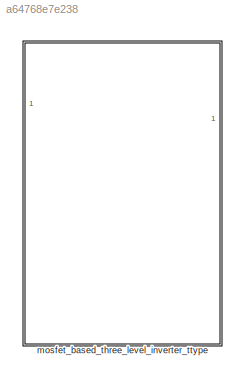
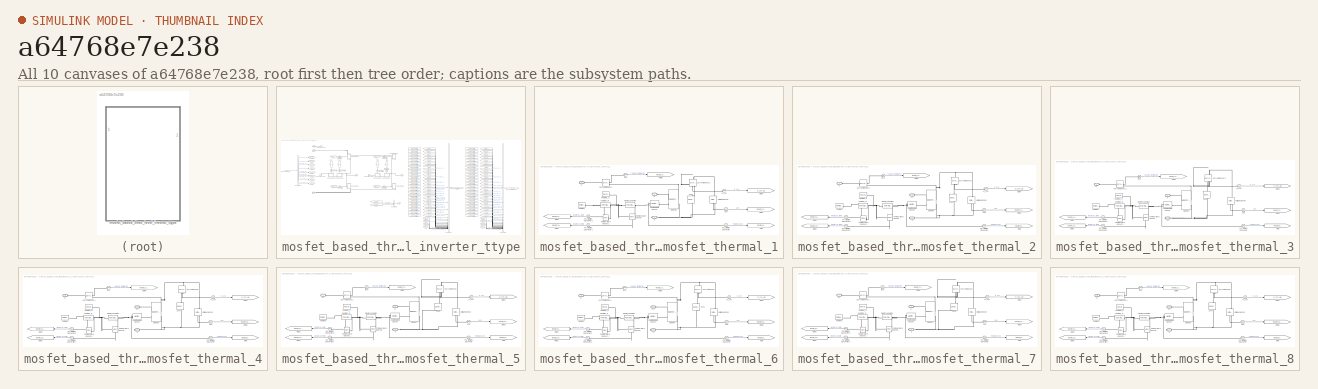
[diagram: thumbnail index - all 10 canvases of the model, root first then tree order]
MODEL slx_a64768e7e238
KIND library
CONFIG AbsTol = auto
CONFIG EnableMultiTasking = off
CONFIG FixedStep = auto
CONFIG MaxStep = auto
CONFIG MinStep = auto
CONFIG RelTol = 1e-3
CONFIG SampleTimeConstraint = Unconstrained
CONFIG SolverName = VariableStepAuto
CONFIG StartTime = 0.0
CONFIG StopTime = 10.0
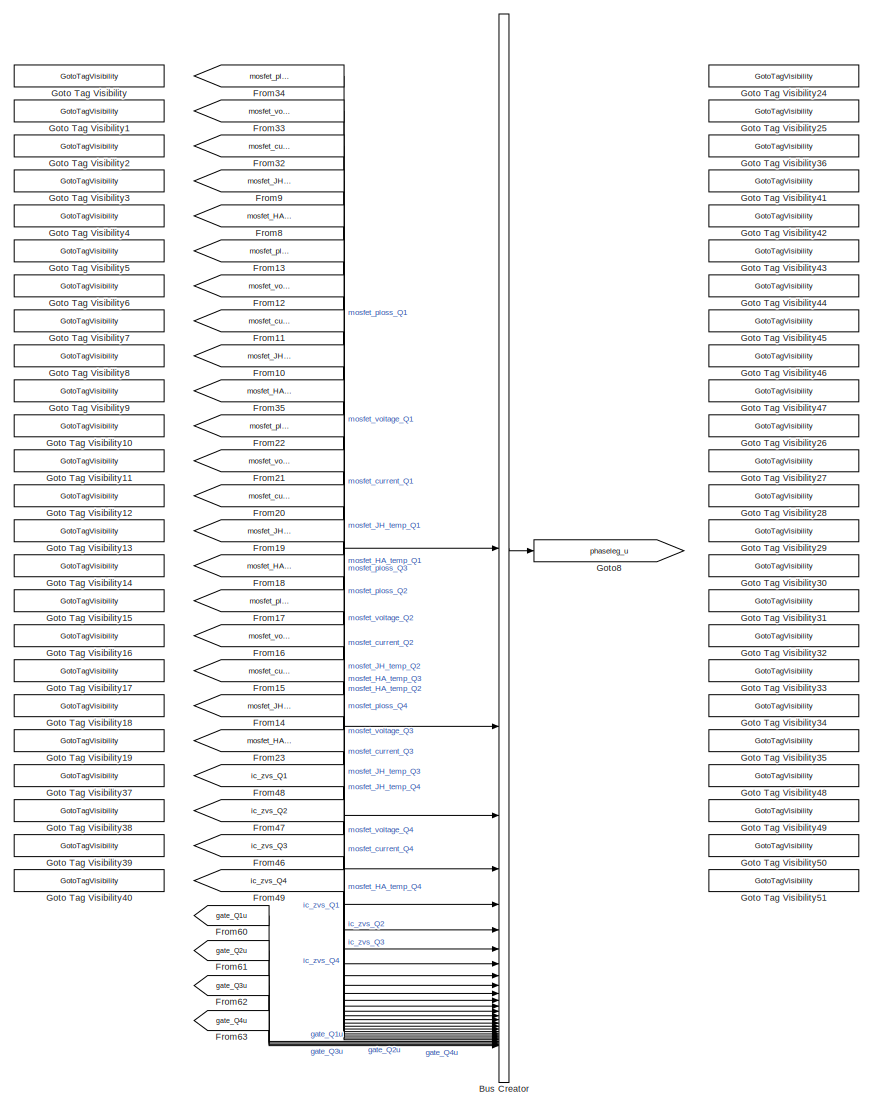
[diagram: mosfet_based_three_level_inverter_ttype - part 1/3, right side, full height]
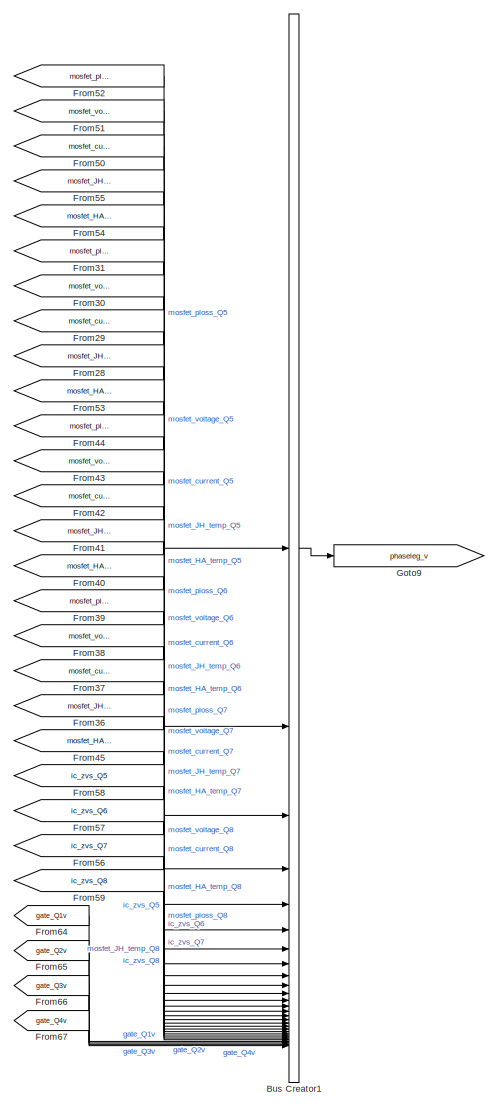
[diagram: mosfet_based_three_level_inverter_ttype - part 2/3, right side, full height]
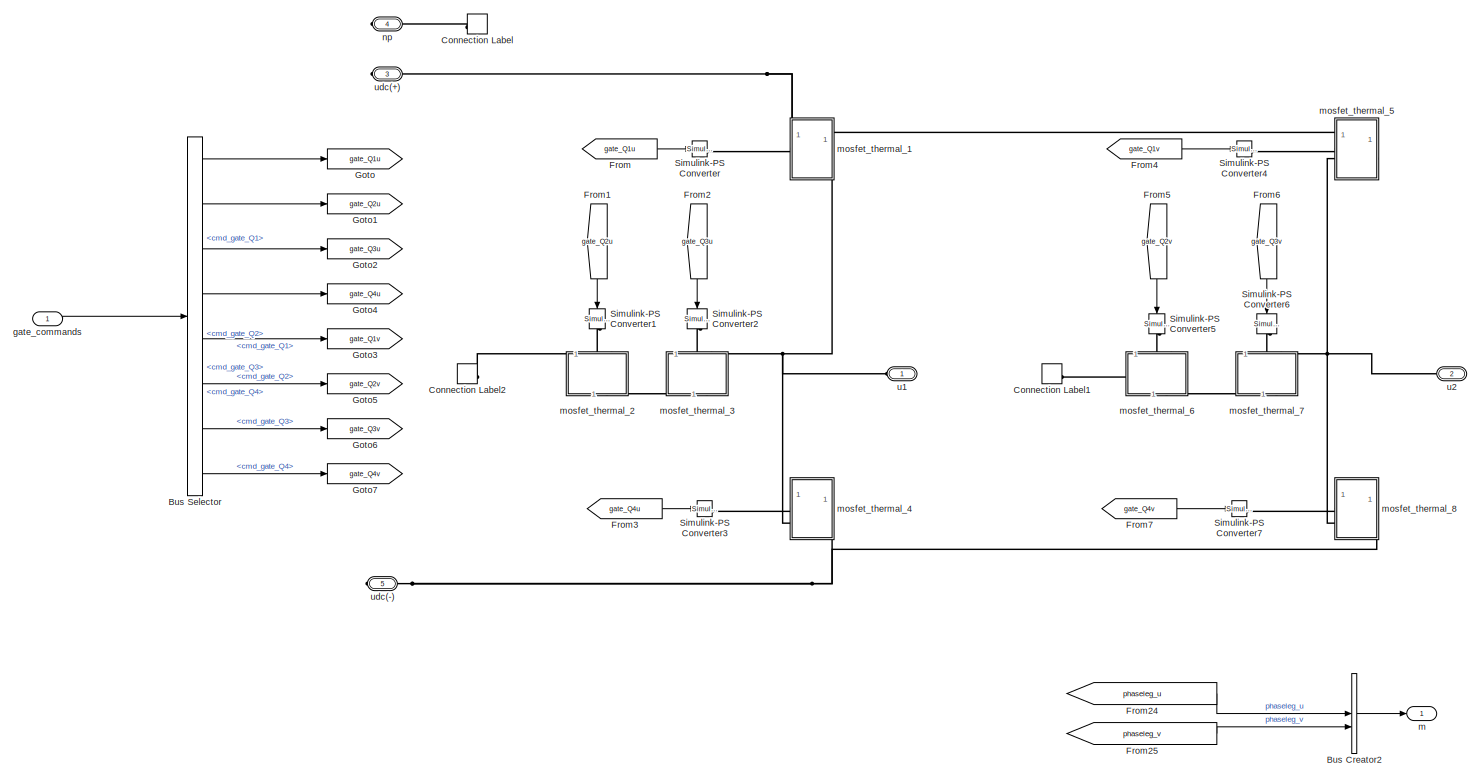
[diagram: mosfet_based_three_level_inverter_ttype - part 3/3, middle left region]
BLOCK [SubSystem] mosfet_based_three_level_inverter_ttype
BLOCK [BusCreator] mosfet_based_three_level_inverter_ttype/Bus Creator
  DisplayOption = bar
  InheritFromInputs = on
  Inputs = 28
BLOCK [BusCreator] mosfet_based_three_level_inverter_ttype/Bus Creator1
  DisplayOption = bar
  InheritFromInputs = on
  Inputs = 28
BLOCK [BusCreator] mosfet_based_three_level_inverter_ttype/Bus Creator2
  DisplayOption = bar
  InheritFromInputs = on
  Inputs = 2
BLOCK [BusSelector] mosfet_based_three_level_inverter_ttype/Bus Selector
  OutputSignals = gate_cmds_ph1.cmd_gate_Q1,gate_cmds_ph1.cmd_gate_Q2,gate_cmds_ph1.cmd_gate_Q3,gate_cmds_ph1.cmd_gate_Q4,gate_cmds_ph2.cmd_gate_Q1,gate_cmds_ph2.cmd_gate_Q2,gate_cmds_ph2.cmd_gate_Q3,gate_cmds_ph2.cmd_gate_Q4
BLOCK [ConnectionLabel] mosfet_based_three_level_inverter_ttype/Connection Label
  Label = np
BLOCK [ConnectionLabel] mosfet_based_three_level_inverter_ttype/Connection Label1
  Label = np
  NameLocation = top
BLOCK [ConnectionLabel] mosfet_based_three_level_inverter_ttype/Connection Label2
  Label = np
  NameLocation = top
BLOCK [From] mosfet_based_three_level_inverter_ttype/From
  GotoTag = gate_Q1u
BLOCK [From] mosfet_based_three_level_inverter_ttype/From1
  GotoTag = gate_Q2u
  NameLocation = left
BLOCK [From] mosfet_based_three_level_inverter_ttype/From10
  GotoTag = mosfet_JH_temp_Q2
BLOCK [From] mosfet_based_three_level_inverter_ttype/From11
  GotoTag = mosfet_current_Q2
BLOCK [From] mosfet_based_three_level_inverter_ttype/From12
  GotoTag = mosfet_voltage_Q2
BLOCK [From] mosfet_based_three_level_inverter_ttype/From13
  GotoTag = mosfet_ploss_Q2
BLOCK [From] mosfet_based_three_level_inverter_ttype/From14
  GotoTag = mosfet_JH_temp_Q4
BLOCK [From] mosfet_based_three_level_inverter_ttype/From15
  GotoTag = mosfet_current_Q4
BLOCK [From] mosfet_based_three_level_inverter_ttype/From16
  GotoTag = mosfet_voltage_Q4
BLOCK [From] mosfet_based_three_level_inverter_ttype/From17
  GotoTag = mosfet_ploss_Q4
BLOCK [From] mosfet_based_three_level_inverter_ttype/From18
  GotoTag = mosfet_HA_temp_Q3
BLOCK [From] mosfet_based_three_level_inverter_ttype/From19
  GotoTag = mosfet_JH_temp_Q3
BLOCK [From] mosfet_based_three_level_inverter_ttype/From2
  GotoTag = gate_Q3u
  NameLocation = left
BLOCK [From] mosfet_based_three_level_inverter_ttype/From20
  GotoTag = mosfet_current_Q3
BLOCK [From] mosfet_based_three_level_inverter_ttype/From21
  GotoTag = mosfet_voltage_Q3
BLOCK [From] mosfet_based_three_level_inverter_ttype/From22
  GotoTag = mosfet_ploss_Q3
BLOCK [From] mosfet_based_three_level_inverter_ttype/From23
  GotoTag = mosfet_HA_temp_Q4
BLOCK [From] mosfet_based_three_level_inverter_ttype/From24
  GotoTag = phaseleg_u
BLOCK [From] mosfet_based_three_level_inverter_ttype/From25
  GotoTag = phaseleg_v
BLOCK [From] mosfet_based_three_level_inverter_ttype/From28
  GotoTag = mosfet_JH_temp_Q6
  TagVisibility = scoped
BLOCK [From] mosfet_based_three_level_inverter_ttype/From29
  GotoTag = mosfet_current_Q6
  TagVisibility = scoped
BLOCK [From] mosfet_based_three_level_inverter_ttype/From3
  GotoTag = gate_Q4u
  NameLocation = top
BLOCK [From] mosfet_based_three_level_inverter_ttype/From30
  GotoTag = mosfet_voltage_Q6
  TagVisibility = scoped
BLOCK [From] mosfet_based_three_level_inverter_ttype/From31
  GotoTag = mosfet_ploss_Q6
  TagVisibility = scoped
BLOCK [From] mosfet_based_three_level_inverter_ttype/From32
  GotoTag = mosfet_current_Q1
BLOCK [From] mosfet_based_three_level_inverter_ttype/From33
  GotoTag = mosfet_voltage_Q1
BLOCK [From] mosfet_based_three_level_inverter_ttype/From34
  GotoTag = mosfet_ploss_Q1
BLOCK [From] mosfet_based_three_level_inverter_ttype/From35
  GotoTag = mosfet_HA_temp_Q2
BLOCK [From] mosfet_based_three_level_inverter_ttype/From36
  GotoTag = mosfet_JH_temp_Q8
  TagVisibility = scoped
BLOCK [From] mosfet_based_three_level_inverter_ttype/From37
  GotoTag = mosfet_current_Q8
  TagVisibility = scoped
BLOCK [From] mosfet_based_three_level_inverter_ttype/From38
  GotoTag = mosfet_voltage_Q8
  TagVisibility = scoped
BLOCK [From] mosfet_based_three_level_inverter_ttype/From39
  GotoTag = mosfet_ploss_Q8
  TagVisibility = scoped
BLOCK [From] mosfet_based_three_level_inverter_ttype/From4
  GotoTag = gate_Q1v
BLOCK [From] mosfet_based_three_level_inverter_ttype/From40
  GotoTag = mosfet_HA_temp_Q7
  TagVisibility = scoped
BLOCK [From] mosfet_based_three_level_inverter_ttype/From41
  GotoTag = mosfet_JH_temp_Q7
  TagVisibility = scoped
BLOCK [From] mosfet_based_three_level_inverter_ttype/From42
  GotoTag = mosfet_current_Q7
  TagVisibility = scoped
BLOCK [From] mosfet_based_three_level_inverter_ttype/From43
  GotoTag = mosfet_voltage_Q7
  TagVisibility = scoped
BLOCK [From] mosfet_based_three_level_inverter_ttype/From44
  GotoTag = mosfet_ploss_Q7
  TagVisibility = scoped
BLOCK [From] mosfet_based_three_level_inverter_ttype/From45
  GotoTag = mosfet_HA_temp_Q8
  TagVisibility = scoped
BLOCK [From] mosfet_based_three_level_inverter_ttype/From46
  GotoTag = ic_zvs_Q3
  TagVisibility = scoped
BLOCK [From] mosfet_based_three_level_inverter_ttype/From47
  GotoTag = ic_zvs_Q2
  TagVisibility = scoped
BLOCK [From] mosfet_based_three_level_inverter_ttype/From48
  GotoTag = ic_zvs_Q1
  TagVisibility = scoped
BLOCK [From] mosfet_based_three_level_inverter_ttype/From49
  GotoTag = ic_zvs_Q4
  TagVisibility = scoped
BLOCK [From] mosfet_based_three_level_inverter_ttype/From5
  GotoTag = gate_Q2v
  NameLocation = right
BLOCK [From] mosfet_based_three_level_inverter_ttype/From50
  GotoTag = mosfet_current_Q5
  TagVisibility = scoped
BLOCK [From] mosfet_based_three_level_inverter_ttype/From51
  GotoTag = mosfet_voltage_Q5
  TagVisibility = scoped
BLOCK [From] mosfet_based_three_level_inverter_ttype/From52
  GotoTag = mosfet_ploss_Q5
  TagVisibility = scoped
BLOCK [From] mosfet_based_three_level_inverter_ttype/From53
  GotoTag = mosfet_HA_temp_Q6
  TagVisibility = scoped
BLOCK [From] mosfet_based_three_level_inverter_ttype/From54
  GotoTag = mosfet_HA_temp_Q5
  TagVisibility = scoped
BLOCK [From] mosfet_based_three_level_inverter_ttype/From55
  GotoTag = mosfet_JH_temp_Q5
  TagVisibility = scoped
BLOCK [From] mosfet_based_three_level_inverter_ttype/From56
  GotoTag = ic_zvs_Q7
  TagVisibility = scoped
BLOCK [From] mosfet_based_three_level_inverter_ttype/From57
  GotoTag = ic_zvs_Q6
  TagVisibility = scoped
BLOCK [From] mosfet_based_three_level_inverter_ttype/From58
  GotoTag = ic_zvs_Q5
  TagVisibility = scoped
BLOCK [From] mosfet_based_three_level_inverter_ttype/From59
  GotoTag = ic_zvs_Q8
  TagVisibility = scoped
BLOCK [From] mosfet_based_three_level_inverter_ttype/From6
  GotoTag = gate_Q3v
  NameLocation = left
BLOCK [From] mosfet_based_three_level_inverter_ttype/From60
  GotoTag = gate_Q1u
BLOCK [From] mosfet_based_three_level_inverter_ttype/From61
  GotoTag = gate_Q2u
BLOCK [From] mosfet_based_three_level_inverter_ttype/From62
  GotoTag = gate_Q3u
BLOCK [From] mosfet_based_three_level_inverter_ttype/From63
  GotoTag = gate_Q4u
  NameLocation = top
BLOCK [From] mosfet_based_three_level_inverter_ttype/From64
  GotoTag = gate_Q1v
BLOCK [From] mosfet_based_three_level_inverter_ttype/From65
  GotoTag = gate_Q2v
  NameLocation = top
BLOCK [From] mosfet_based_three_level_inverter_ttype/From66
  GotoTag = gate_Q3v
BLOCK [From] mosfet_based_three_level_inverter_ttype/From67
  GotoTag = gate_Q4v
  NameLocation = top
BLOCK [From] mosfet_based_three_level_inverter_ttype/From7
  GotoTag = gate_Q4v
  NameLocation = top
BLOCK [From] mosfet_based_three_level_inverter_ttype/From8
  GotoTag = mosfet_HA_temp_Q1
BLOCK [From] mosfet_based_three_level_inverter_ttype/From9
  GotoTag = mosfet_JH_temp_Q1
BLOCK [Goto] mosfet_based_three_level_inverter_ttype/Goto
  GotoTag = gate_Q1u
BLOCK [GotoTagVisibility] mosfet_based_three_level_inverter_ttype/Goto Tag Visibility
  GotoTag = mosfet_ploss_Q1
BLOCK [GotoTagVisibility] mosfet_based_three_level_inverter_ttype/Goto Tag Visibility1
  GotoTag = mosfet_voltage_Q1
BLOCK [GotoTagVisibility] mosfet_based_three_level_inverter_ttype/Goto Tag Visibility10
  GotoTag = mosfet_ploss_Q3
BLOCK [GotoTagVisibility] mosfet_based_three_level_inverter_ttype/Goto Tag Visibility11
  GotoTag = mosfet_voltage_Q3
BLOCK [GotoTagVisibility] mosfet_based_three_level_inverter_ttype/Goto Tag Visibility12
  GotoTag = mosfet_current_Q3
BLOCK [GotoTagVisibility] mosfet_based_three_level_inverter_ttype/Goto Tag Visibility13
  GotoTag = mosfet_JH_temp_Q3
BLOCK [GotoTagVisibility] mosfet_based_three_level_inverter_ttype/Goto Tag Visibility14
  GotoTag = mosfet_HA_temp_Q3
  NameLocation = top
BLOCK [GotoTagVisibility] mosfet_based_three_level_inverter_ttype/Goto Tag Visibility15
  GotoTag = mosfet_ploss_Q4
BLOCK [GotoTagVisibility] mosfet_based_three_level_inverter_ttype/Goto Tag Visibility16
  GotoTag = mosfet_voltage_Q4
BLOCK [GotoTagVisibility] mosfet_based_three_level_inverter_ttype/Goto Tag Visibility17
  GotoTag = mosfet_current_Q4
BLOCK [GotoTagVisibility] mosfet_based_three_level_inverter_ttype/Goto Tag Visibility18
  GotoTag = mosfet_JH_temp_Q4
BLOCK [GotoTagVisibility] mosfet_based_three_level_inverter_ttype/Goto Tag Visibility19
  GotoTag = mosfet_HA_temp_Q4
  NameLocation = top
BLOCK [GotoTagVisibility] mosfet_based_three_level_inverter_ttype/Goto Tag Visibility2
  GotoTag = mosfet_current_Q1
BLOCK [GotoTagVisibility] mosfet_based_three_level_inverter_ttype/Goto Tag Visibility24
  GotoTag = mosfet_ploss_Q5
BLOCK [GotoTagVisibility] mosfet_based_three_level_inverter_ttype/Goto Tag Visibility25
  GotoTag = mosfet_voltage_Q5
BLOCK [GotoTagVisibility] mosfet_based_three_level_inverter_ttype/Goto Tag Visibility26
  GotoTag = mosfet_ploss_Q7
BLOCK [GotoTagVisibility] mosfet_based_three_level_inverter_ttype/Goto Tag Visibility27
  GotoTag = mosfet_voltage_Q7
BLOCK [GotoTagVisibility] mosfet_based_three_level_inverter_ttype/Goto Tag Visibility28
  GotoTag = mosfet_current_Q7
BLOCK [GotoTagVisibility] mosfet_based_three_level_inverter_ttype/Goto Tag Visibility29
  GotoTag = mosfet_JH_temp_Q7
BLOCK [GotoTagVisibility] mosfet_based_three_level_inverter_ttype/Goto Tag Visibility3
  GotoTag = mosfet_JH_temp_Q1
BLOCK [GotoTagVisibility] mosfet_based_three_level_inverter_ttype/Goto Tag Visibility30
  GotoTag = mosfet_HA_temp_Q7
  NameLocation = top
BLOCK [GotoTagVisibility] mosfet_based_three_level_inverter_ttype/Goto Tag Visibility31
  GotoTag = mosfet_ploss_Q8
BLOCK [GotoTagVisibility] mosfet_based_three_level_inverter_ttype/Goto Tag Visibility32
  GotoTag = mosfet_voltage_Q8
BLOCK [GotoTagVisibility] mosfet_based_three_level_inverter_ttype/Goto Tag Visibility33
  GotoTag = mosfet_current_Q8
BLOCK [GotoTagVisibility] mosfet_based_three_level_inverter_ttype/Goto Tag Visibility34
  GotoTag = mosfet_JH_temp_Q8
BLOCK [GotoTagVisibility] mosfet_based_three_level_inverter_ttype/Goto Tag Visibility35
  GotoTag = mosfet_HA_temp_Q8
  NameLocation = top
BLOCK [GotoTagVisibility] mosfet_based_three_level_inverter_ttype/Goto Tag Visibility36
  GotoTag = mosfet_current_Q5
BLOCK [GotoTagVisibility] mosfet_based_three_level_inverter_ttype/Goto Tag Visibility37
  GotoTag = ic_zvs_Q1
BLOCK [GotoTagVisibility] mosfet_based_three_level_inverter_ttype/Goto Tag Visibility38
  GotoTag = ic_zvs_Q2
BLOCK [GotoTagVisibility] mosfet_based_three_level_inverter_ttype/Goto Tag Visibility39
  GotoTag = ic_zvs_Q3
BLOCK [GotoTagVisibility] mosfet_based_three_level_inverter_ttype/Goto Tag Visibility4
  GotoTag = mosfet_HA_temp_Q1
BLOCK [GotoTagVisibility] mosfet_based_three_level_inverter_ttype/Goto Tag Visibility40
  GotoTag = ic_zvs_Q4
  NameLocation = top
BLOCK [GotoTagVisibility] mosfet_based_three_level_inverter_ttype/Goto Tag Visibility41
  GotoTag = mosfet_JH_temp_Q5
BLOCK [GotoTagVisibility] mosfet_based_three_level_inverter_ttype/Goto Tag Visibility42
  GotoTag = mosfet_HA_temp_Q5
BLOCK [GotoTagVisibility] mosfet_based_three_level_inverter_ttype/Goto Tag Visibility43
  GotoTag = mosfet_ploss_Q6
BLOCK [GotoTagVisibility] mosfet_based_three_level_inverter_ttype/Goto Tag Visibility44
  GotoTag = mosfet_voltage_Q6
BLOCK [GotoTagVisibility] mosfet_based_three_level_inverter_ttype/Goto Tag Visibility45
  GotoTag = mosfet_current_Q6
BLOCK [GotoTagVisibility] mosfet_based_three_level_inverter_ttype/Goto Tag Visibility46
  GotoTag = mosfet_JH_temp_Q6
BLOCK [GotoTagVisibility] mosfet_based_three_level_inverter_ttype/Goto Tag Visibility47
  GotoTag = mosfet_HA_temp_Q6
  NameLocation = top
BLOCK [GotoTagVisibility] mosfet_based_three_level_inverter_ttype/Goto Tag Visibility48
  GotoTag = ic_zvs_Q5
BLOCK [GotoTagVisibility] mosfet_based_three_level_inverter_ttype/Goto Tag Visibility49
  GotoTag = ic_zvs_Q6
BLOCK [GotoTagVisibility] mosfet_based_three_level_inverter_ttype/Goto Tag Visibility5
  GotoTag = mosfet_ploss_Q2
BLOCK [GotoTagVisibility] mosfet_based_three_level_inverter_ttype/Goto Tag Visibility50
  GotoTag = ic_zvs_Q7
BLOCK [GotoTagVisibility] mosfet_based_three_level_inverter_ttype/Goto Tag Visibility51
  GotoTag = ic_zvs_Q8
  NameLocation = top
BLOCK [GotoTagVisibility] mosfet_based_three_level_inverter_ttype/Goto Tag Visibility6
  GotoTag = mosfet_voltage_Q2
BLOCK [GotoTagVisibility] mosfet_based_three_level_inverter_ttype/Goto Tag Visibility7
  GotoTag = mosfet_current_Q2
BLOCK [GotoTagVisibility] mosfet_based_three_level_inverter_ttype/Goto Tag Visibility8
  GotoTag = mosfet_JH_temp_Q2
BLOCK [GotoTagVisibility] mosfet_based_three_level_inverter_ttype/Goto Tag Visibility9
  GotoTag = mosfet_HA_temp_Q2
  NameLocation = top
BLOCK [Goto] mosfet_based_three_level_inverter_ttype/Goto1
  GotoTag = gate_Q2u
BLOCK [Goto] mosfet_based_three_level_inverter_ttype/Goto2
  GotoTag = gate_Q3u
BLOCK [Goto] mosfet_based_three_level_inverter_ttype/Goto3
  GotoTag = gate_Q1v
BLOCK [Goto] mosfet_based_three_level_inverter_ttype/Goto4
  GotoTag = gate_Q4u
BLOCK [Goto] mosfet_based_three_level_inverter_ttype/Goto5
  GotoTag = gate_Q2v
BLOCK [Goto] mosfet_based_three_level_inverter_ttype/Goto6
  GotoTag = gate_Q3v
BLOCK [Goto] mosfet_based_three_level_inverter_ttype/Goto7
  GotoTag = gate_Q4v
BLOCK [Goto] mosfet_based_three_level_inverter_ttype/Goto8
  GotoTag = phaseleg_u
BLOCK [Goto] mosfet_based_three_level_inverter_ttype/Goto9
  GotoTag = phaseleg_v
BLOCK [Reference] mosfet_based_three_level_inverter_ttype/Simulink-PS Converter  REF=nesl_utility/Simulink-PS
Converter
  SourceBlock = nesl_utility/Simulink-PS\nConverter
  SourceType = Simulink-PS\nConverter
BLOCK [Reference] mosfet_based_three_level_inverter_ttype/Simulink-PS Converter1  REF=nesl_utility/Simulink-PS
Converter
  NameLocation = top
  SourceBlock = nesl_utility/Simulink-PS\nConverter
  SourceType = Simulink-PS\nConverter
BLOCK [Reference] mosfet_based_three_level_inverter_ttype/Simulink-PS Converter2  REF=nesl_utility/Simulink-PS
Converter
  NameLocation = right
  SourceBlock = nesl_utility/Simulink-PS\nConverter
  SourceType = Simulink-PS\nConverter
BLOCK [Reference] mosfet_based_three_level_inverter_ttype/Simulink-PS Converter3  REF=nesl_utility/Simulink-PS
Converter
  NameLocation = top
  SourceBlock = nesl_utility/Simulink-PS\nConverter
  SourceType = Simulink-PS\nConverter
BLOCK [Reference] mosfet_based_three_level_inverter_ttype/Simulink-PS Converter4  REF=nesl_utility/Simulink-PS
Converter
  SourceBlock = nesl_utility/Simulink-PS\nConverter
  SourceType = Simulink-PS\nConverter
BLOCK [Reference] mosfet_based_three_level_inverter_ttype/Simulink-PS Converter5  REF=nesl_utility/Simulink-PS
Converter
  NameLocation = top
  SourceBlock = nesl_utility/Simulink-PS\nConverter
  SourceType = Simulink-PS\nConverter
BLOCK [Reference] mosfet_based_three_level_inverter_ttype/Simulink-PS Converter6  REF=nesl_utility/Simulink-PS
Converter
  NameLocation = right
  SourceBlock = nesl_utility/Simulink-PS\nConverter
  SourceType = Simulink-PS\nConverter
BLOCK [Reference] mosfet_based_three_level_inverter_ttype/Simulink-PS Converter7  REF=nesl_utility/Simulink-PS
Converter
  NameLocation = top
  SourceBlock = nesl_utility/Simulink-PS\nConverter
  SourceType = Simulink-PS\nConverter
BLOCK [Inport] mosfet_based_three_level_inverter_ttype/gate_commands
BLOCK [Outport] mosfet_based_three_level_inverter_ttype/m
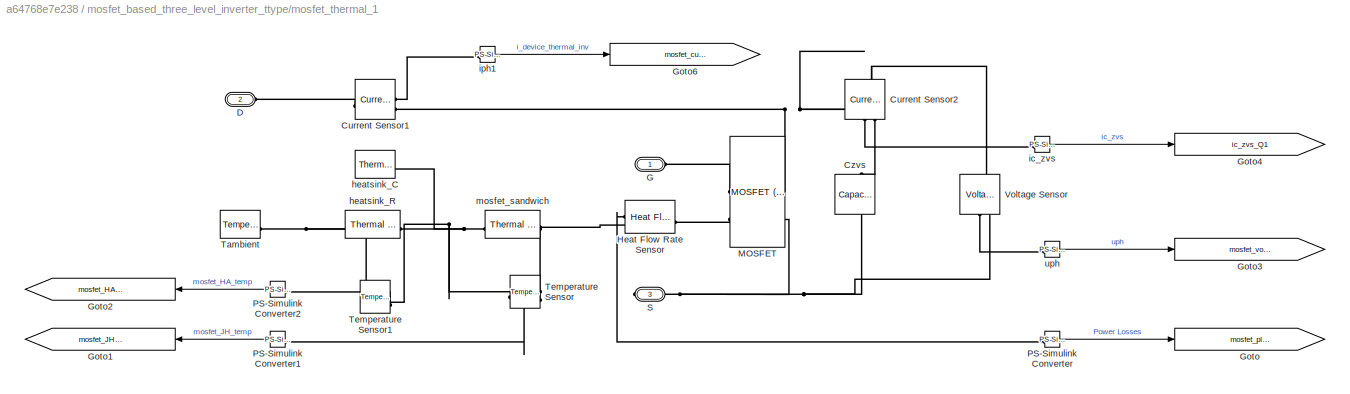
BLOCK [SubSystem] mosfet_based_three_level_inverter_ttype/mosfet_thermal_1
  NameLocation = right
  PortSchema = {"entries":[{"content":{"sides":[{"content":{"connectorIds":["LConn1"]},"type":"ConnectorPlacement.EquallySpacedRectSide","uuid":"9277da8d-d460-43e6-8478-dd662f15d226"},{"content":{"connectorIds":[],"side":"RIGHT"},"type":"ConnectorPlacement.EquallySpacedRectSide","uuid":"a7ece396-f1d9-4f4f-a05b-db1fc65d6e1d"},{"content":{"connectorIds":["LConn2"],"side":"TOP"},"type":"ConnectorPlacement.EquallySp...<+397ch>  <repeated x7 — deduplicated; at blocks: mosfet_thermal_1, mosfet_thermal_3, mosfet_thermal_4, mosfet_thermal_5, mosfet_thermal_6, mosfet_thermal_7, mosfet_thermal_8>
BLOCK [Reference] mosfet_based_three_level_inverter_ttype/mosfet_thermal_1/Current Sensor1  REF=fl_lib/Electrical/Electrical Sensors/Current Sensor
  SourceBlock = fl_lib/Electrical/Electrical Sensors/Current Sensor
  SourceType = Current Sensor
BLOCK [Reference] mosfet_based_three_level_inverter_ttype/mosfet_thermal_1/Current Sensor2  REF=fl_lib/Electrical/Electrical Sensors/Current Sensor
  NameLocation = left
  SourceBlock = fl_lib/Electrical/Electrical Sensors/Current Sensor
  SourceType = Current Sensor
BLOCK [Reference] mosfet_based_three_level_inverter_ttype/mosfet_thermal_1/Czvs  REF=fl_lib/Electrical/Electrical Elements/Capacitor
  NameLocation = right
  SourceBlock = fl_lib/Electrical/Electrical Elements/Capacitor
  SourceType = Capacitor
BLOCK [PMIOPort] mosfet_based_three_level_inverter_ttype/mosfet_thermal_1/D
  Port = 2
  Side = Left
BLOCK [PMIOPort] mosfet_based_three_level_inverter_ttype/mosfet_thermal_1/G
  NameLocation = top
  Side = Left
BLOCK [Goto] mosfet_based_three_level_inverter_ttype/mosfet_thermal_1/Goto
  GotoTag = mosfet_ploss_Q1
  TagVisibility = scoped
BLOCK [Goto] mosfet_based_three_level_inverter_ttype/mosfet_thermal_1/Goto1
  GotoTag = mosfet_JH_temp_Q1
  NameLocation = top
  TagVisibility = scoped
BLOCK [Goto] mosfet_based_three_level_inverter_ttype/mosfet_thermal_1/Goto2
  GotoTag = mosfet_HA_temp_Q1
  NameLocation = top
  TagVisibility = scoped
BLOCK [Goto] mosfet_based_three_level_inverter_ttype/mosfet_thermal_1/Goto3
  GotoTag = mosfet_voltage_Q1
  TagVisibility = scoped
BLOCK [Goto] mosfet_based_three_level_inverter_ttype/mosfet_thermal_1/Goto4
  GotoTag = ic_zvs_Q1
  TagVisibility = scoped
BLOCK [Goto] mosfet_based_three_level_inverter_ttype/mosfet_thermal_1/Goto6
  GotoTag = mosfet_current_Q1
  TagVisibility = scoped
BLOCK [Reference] mosfet_based_three_level_inverter_ttype/mosfet_thermal_1/Heat Flow Rate Sensor  REF=fl_lib/Thermal/Thermal Sensors/Heat Flow Rate
Sensor
  SourceBlock = fl_lib/Thermal/Thermal Sensors/Heat Flow Rate\nSensor
  SourceType = Heat Flow Rate\nSensor
BLOCK [Reference] mosfet_based_three_level_inverter_ttype/mosfet_thermal_1/MOSFET  REF=ee_lib/Semiconductors &
Converters/MOSFET
(Ideal,
Switching)
  SourceBlock = ee_lib/Semiconductors &\nConverters/MOSFET\n(Ideal,\nSwitching)
  SourceType = MOSFET\n(Ideal,\nSwitching)
BLOCK [Reference] mosfet_based_three_level_inverter_ttype/mosfet_thermal_1/PS-Simulink Converter  REF=nesl_utility/PS-Simulink
Converter
  SourceBlock = nesl_utility/PS-Simulink\nConverter
  SourceType = PS-Simulink\nConverter
BLOCK [Reference] mosfet_based_three_level_inverter_ttype/mosfet_thermal_1/PS-Simulink Converter1  REF=nesl_utility/PS-Simulink
Converter
  SourceBlock = nesl_utility/PS-Simulink\nConverter
  SourceType = PS-Simulink\nConverter
BLOCK [Reference] mosfet_based_three_level_inverter_ttype/mosfet_thermal_1/PS-Simulink Converter2  REF=nesl_utility/PS-Simulink
Converter
  NameLocation = right
  SourceBlock = nesl_utility/PS-Simulink\nConverter
  SourceType = PS-Simulink\nConverter
BLOCK [PMIOPort] mosfet_based_three_level_inverter_ttype/mosfet_thermal_1/S
  Port = 3
  Side = Right
BLOCK [Reference] mosfet_based_three_level_inverter_ttype/mosfet_thermal_1/Tambient  REF=fl_lib/Thermal/Thermal Sources/Temperature Source
  SourceBlock = fl_lib/Thermal/Thermal Sources/Temperature Source
  SourceType = Temperature Source
BLOCK [Reference] mosfet_based_three_level_inverter_ttype/mosfet_thermal_1/Temperature Sensor  REF=fl_lib/Thermal/Thermal Sensors/Temperature Sensor
  NameLocation = top
  SourceBlock = fl_lib/Thermal/Thermal Sensors/Temperature Sensor
  SourceType = Temperature Sensor
BLOCK [Reference] mosfet_based_three_level_inverter_ttype/mosfet_thermal_1/Temperature Sensor1  REF=fl_lib/Thermal/Thermal Sensors/Temperature Sensor
  NameLocation = top
  SourceBlock = fl_lib/Thermal/Thermal Sensors/Temperature Sensor
  SourceType = Temperature Sensor
BLOCK [Reference] mosfet_based_three_level_inverter_ttype/mosfet_thermal_1/Voltage Sensor  REF=fl_lib/Electrical/Electrical Sensors/Voltage Sensor
  NameLocation = right
  SourceBlock = fl_lib/Electrical/Electrical Sensors/Voltage Sensor
  SourceType = Voltage Sensor
BLOCK [Reference] mosfet_based_three_level_inverter_ttype/mosfet_thermal_1/heatsink_C  REF=fl_lib/Thermal/Thermal Elements/Thermal Mass
  SourceBlock = fl_lib/Thermal/Thermal Elements/Thermal Mass
  SourceType = Thermal Mass
BLOCK [Reference] mosfet_based_three_level_inverter_ttype/mosfet_thermal_1/heatsink_R  REF=fl_lib/Thermal/Thermal Elements/Thermal Resistance
  SourceBlock = fl_lib/Thermal/Thermal Elements/Thermal Resistance
  SourceType = Thermal Resistance
BLOCK [Reference] mosfet_based_three_level_inverter_ttype/mosfet_thermal_1/ic_zvs  REF=nesl_utility/PS-Simulink
Converter
  SourceBlock = nesl_utility/PS-Simulink\nConverter
  SourceType = PS-Simulink\nConverter
BLOCK [Reference] mosfet_based_three_level_inverter_ttype/mosfet_thermal_1/iph1  REF=nesl_utility/PS-Simulink
Converter
  SourceBlock = nesl_utility/PS-Simulink\nConverter
  SourceType = PS-Simulink\nConverter
BLOCK [Reference] mosfet_based_three_level_inverter_ttype/mosfet_thermal_1/mosfet_sandwich  REF=fl_lib/Thermal/Thermal Elements/Thermal Resistance
  SourceBlock = fl_lib/Thermal/Thermal Elements/Thermal Resistance
  SourceType = Thermal Resistance
BLOCK [Reference] mosfet_based_three_level_inverter_ttype/mosfet_thermal_1/uph  REF=nesl_utility/PS-Simulink
Converter
  SourceBlock = nesl_utility/PS-Simulink\nConverter
  SourceType = PS-Simulink\nConverter
BLOCK [SubSystem] mosfet_based_three_level_inverter_ttype/mosfet_thermal_2
  PortSchema = {"entries":[{"content":{"sides":[{"content":{"connectorIds":["LConn1"]},"type":"ConnectorPlacement.EquallySpacedRectSide","uuid":"9277da8d-d460-43e6-8478-dd662f15d226"},{"content":{"side":"RIGHT"},"type":"ConnectorPlacement.EquallySpacedRectSide","uuid":"a7ece396-f1d9-4f4f-a05b-db1fc65d6e1d"},{"content":{"connectorIds":["LConn2"],"side":"TOP"},"type":"ConnectorPlacement.EquallySpacedRectSide","uui...<+379ch>
BLOCK [Reference] mosfet_based_three_level_inverter_ttype/mosfet_thermal_2/Current Sensor1  REF=fl_lib/Electrical/Electrical Sensors/Current Sensor
  SourceBlock = fl_lib/Electrical/Electrical Sensors/Current Sensor
  SourceType = Current Sensor
BLOCK [Reference] mosfet_based_three_level_inverter_ttype/mosfet_thermal_2/Current Sensor2  REF=fl_lib/Electrical/Electrical Sensors/Current Sensor
  NameLocation = left
  SourceBlock = fl_lib/Electrical/Electrical Sensors/Current Sensor
  SourceType = Current Sensor
BLOCK [Reference] mosfet_based_three_level_inverter_ttype/mosfet_thermal_2/Czvs  REF=fl_lib/Electrical/Electrical Elements/Capacitor
  NameLocation = right
  SourceBlock = fl_lib/Electrical/Electrical Elements/Capacitor
  SourceType = Capacitor
BLOCK [PMIOPort] mosfet_based_three_level_inverter_ttype/mosfet_thermal_2/D
  Port = 2
  Side = Left
BLOCK [PMIOPort] mosfet_based_three_level_inverter_ttype/mosfet_thermal_2/G
  NameLocation = top
  Side = Left
BLOCK [Goto] mosfet_based_three_level_inverter_ttype/mosfet_thermal_2/Goto
  GotoTag = mosfet_ploss_Q2
  TagVisibility = scoped
BLOCK [Goto] mosfet_based_three_level_inverter_ttype/mosfet_thermal_2/Goto1
  GotoTag = mosfet_JH_temp_Q2
  NameLocation = top
  TagVisibility = scoped
BLOCK [Goto] mosfet_based_three_level_inverter_ttype/mosfet_thermal_2/Goto2
  GotoTag = mosfet_HA_temp_Q2
  NameLocation = top
  TagVisibility = scoped
BLOCK [Goto] mosfet_based_three_level_inverter_ttype/mosfet_thermal_2/Goto3
  GotoTag = mosfet_voltage_Q2
  TagVisibility = scoped
BLOCK [Goto] mosfet_based_three_level_inverter_ttype/mosfet_thermal_2/Goto4
  GotoTag = ic_zvs_Q2
  TagVisibility = scoped
BLOCK [Goto] mosfet_based_three_level_inverter_ttype/mosfet_thermal_2/Goto6
  GotoTag = mosfet_current_Q2
  TagVisibility = scoped
BLOCK [Reference] mosfet_based_three_level_inverter_ttype/mosfet_thermal_2/Heat Flow Rate Sensor  REF=fl_lib/Thermal/Thermal Sensors/Heat Flow Rate
Sensor
  SourceBlock = fl_lib/Thermal/Thermal Sensors/Heat Flow Rate\nSensor
  SourceType = Heat Flow Rate\nSensor
BLOCK [Reference] mosfet_based_three_level_inverter_ttype/mosfet_thermal_2/MOSFET  REF=ee_lib/Semiconductors &
Converters/MOSFET
(Ideal,
Switching)
  SourceBlock = ee_lib/Semiconductors &\nConverters/MOSFET\n(Ideal,\nSwitching)
  SourceType = MOSFET\n(Ideal,\nSwitching)
BLOCK [Reference] mosfet_based_three_level_inverter_ttype/mosfet_thermal_2/PS-Simulink Converter  REF=nesl_utility/PS-Simulink
Converter
  SourceBlock = nesl_utility/PS-Simulink\nConverter
  SourceType = PS-Simulink\nConverter
BLOCK [Reference] mosfet_based_three_level_inverter_ttype/mosfet_thermal_2/PS-Simulink Converter1  REF=nesl_utility/PS-Simulink
Converter
  SourceBlock = nesl_utility/PS-Simulink\nConverter
  SourceType = PS-Simulink\nConverter
BLOCK [Reference] mosfet_based_three_level_inverter_ttype/mosfet_thermal_2/PS-Simulink Converter2  REF=nesl_utility/PS-Simulink
Converter
  NameLocation = right
  SourceBlock = nesl_utility/PS-Simulink\nConverter
  SourceType = PS-Simulink\nConverter
BLOCK [PMIOPort] mosfet_based_three_level_inverter_ttype/mosfet_thermal_2/S
  Port = 3
  Side = Right
BLOCK [Reference] mosfet_based_three_level_inverter_ttype/mosfet_thermal_2/Tambient  REF=fl_lib/Thermal/Thermal Sources/Temperature Source
  SourceBlock = fl_lib/Thermal/Thermal Sources/Temperature Source
  SourceType = Temperature Source
BLOCK [Reference] mosfet_based_three_level_inverter_ttype/mosfet_thermal_2/Temperature Sensor  REF=fl_lib/Thermal/Thermal Sensors/Temperature Sensor
  NameLocation = top
  SourceBlock = fl_lib/Thermal/Thermal Sensors/Temperature Sensor
  SourceType = Temperature Sensor
BLOCK [Reference] mosfet_based_three_level_inverter_ttype/mosfet_thermal_2/Temperature Sensor1  REF=fl_lib/Thermal/Thermal Sensors/Temperature Sensor
  NameLocation = top
  SourceBlock = fl_lib/Thermal/Thermal Sensors/Temperature Sensor
  SourceType = Temperature Sensor
BLOCK [Reference] mosfet_based_three_level_inverter_ttype/mosfet_thermal_2/Voltage Sensor  REF=fl_lib/Electrical/Electrical Sensors/Voltage Sensor
  NameLocation = right
  SourceBlock = fl_lib/Electrical/Electrical Sensors/Voltage Sensor
  SourceType = Voltage Sensor
BLOCK [Reference] mosfet_based_three_level_inverter_ttype/mosfet_thermal_2/heatsink_C  REF=fl_lib/Thermal/Thermal Elements/Thermal Mass
  SourceBlock = fl_lib/Thermal/Thermal Elements/Thermal Mass
  SourceType = Thermal Mass
BLOCK [Reference] mosfet_based_three_level_inverter_ttype/mosfet_thermal_2/heatsink_R  REF=fl_lib/Thermal/Thermal Elements/Thermal Resistance
  SourceBlock = fl_lib/Thermal/Thermal Elements/Thermal Resistance
  SourceType = Thermal Resistance
BLOCK [Reference] mosfet_based_three_level_inverter_ttype/mosfet_thermal_2/ic_zvs  REF=nesl_utility/PS-Simulink
Converter
  SourceBlock = nesl_utility/PS-Simulink\nConverter
  SourceType = PS-Simulink\nConverter
BLOCK [Reference] mosfet_based_three_level_inverter_ttype/mosfet_thermal_2/iph1  REF=nesl_utility/PS-Simulink
Converter
  SourceBlock = nesl_utility/PS-Simulink\nConverter
  SourceType = PS-Simulink\nConverter
BLOCK [Reference] mosfet_based_three_level_inverter_ttype/mosfet_thermal_2/mosfet_sandwich  REF=fl_lib/Thermal/Thermal Elements/Thermal Resistance
  SourceBlock = fl_lib/Thermal/Thermal Elements/Thermal Resistance
  SourceType = Thermal Resistance
BLOCK [Reference] mosfet_based_three_level_inverter_ttype/mosfet_thermal_2/uph  REF=nesl_utility/PS-Simulink
Converter
  SourceBlock = nesl_utility/PS-Simulink\nConverter
  SourceType = PS-Simulink\nConverter
BLOCK [SubSystem] mosfet_based_three_level_inverter_ttype/mosfet_thermal_3
BLOCK [Reference] mosfet_based_three_level_inverter_ttype/mosfet_thermal_3/Current Sensor1  REF=fl_lib/Electrical/Electrical Sensors/Current Sensor
  SourceBlock = fl_lib/Electrical/Electrical Sensors/Current Sensor
  SourceType = Current Sensor
BLOCK [Reference] mosfet_based_three_level_inverter_ttype/mosfet_thermal_3/Current Sensor2  REF=fl_lib/Electrical/Electrical Sensors/Current Sensor
  NameLocation = left
  SourceBlock = fl_lib/Electrical/Electrical Sensors/Current Sensor
  SourceType = Current Sensor
BLOCK [Reference] mosfet_based_three_level_inverter_ttype/mosfet_thermal_3/Czvs  REF=fl_lib/Electrical/Electrical Elements/Capacitor
  NameLocation = right
  SourceBlock = fl_lib/Electrical/Electrical Elements/Capacitor
  SourceType = Capacitor
BLOCK [PMIOPort] mosfet_based_three_level_inverter_ttype/mosfet_thermal_3/D
  Port = 2
  Side = Left
BLOCK [PMIOPort] mosfet_based_three_level_inverter_ttype/mosfet_thermal_3/G
  NameLocation = top
  Side = Left
BLOCK [Goto] mosfet_based_three_level_inverter_ttype/mosfet_thermal_3/Goto
  GotoTag = mosfet_ploss_Q3
  TagVisibility = scoped
BLOCK [Goto] mosfet_based_three_level_inverter_ttype/mosfet_thermal_3/Goto1
  GotoTag = mosfet_JH_temp_Q3
  NameLocation = top
  TagVisibility = scoped
BLOCK [Goto] mosfet_based_three_level_inverter_ttype/mosfet_thermal_3/Goto2
  GotoTag = mosfet_HA_temp_Q3
  NameLocation = top
  TagVisibility = scoped
BLOCK [Goto] mosfet_based_three_level_inverter_ttype/mosfet_thermal_3/Goto3
  GotoTag = mosfet_voltage_Q3
  TagVisibility = scoped
BLOCK [Goto] mosfet_based_three_level_inverter_ttype/mosfet_thermal_3/Goto4
  GotoTag = ic_zvs_Q3
  TagVisibility = scoped
BLOCK [Goto] mosfet_based_three_level_inverter_ttype/mosfet_thermal_3/Goto6
  GotoTag = mosfet_current_Q3
  TagVisibility = scoped
BLOCK [Reference] mosfet_based_three_level_inverter_ttype/mosfet_thermal_3/Heat Flow Rate Sensor  REF=fl_lib/Thermal/Thermal Sensors/Heat Flow Rate
Sensor
  SourceBlock = fl_lib/Thermal/Thermal Sensors/Heat Flow Rate\nSensor
  SourceType = Heat Flow Rate\nSensor
BLOCK [Reference] mosfet_based_three_level_inverter_ttype/mosfet_thermal_3/MOSFET  REF=ee_lib/Semiconductors &
Converters/MOSFET
(Ideal,
Switching)
  SourceBlock = ee_lib/Semiconductors &\nConverters/MOSFET\n(Ideal,\nSwitching)
  SourceType = MOSFET\n(Ideal,\nSwitching)
BLOCK [Reference] mosfet_based_three_level_inverter_ttype/mosfet_thermal_3/PS-Simulink Converter  REF=nesl_utility/PS-Simulink
Converter
  SourceBlock = nesl_utility/PS-Simulink\nConverter
  SourceType = PS-Simulink\nConverter
BLOCK [Reference] mosfet_based_three_level_inverter_ttype/mosfet_thermal_3/PS-Simulink Converter1  REF=nesl_utility/PS-Simulink
Converter
  SourceBlock = nesl_utility/PS-Simulink\nConverter
  SourceType = PS-Simulink\nConverter
BLOCK [Reference] mosfet_based_three_level_inverter_ttype/mosfet_thermal_3/PS-Simulink Converter2  REF=nesl_utility/PS-Simulink
Converter
  NameLocation = right
  SourceBlock = nesl_utility/PS-Simulink\nConverter
  SourceType = PS-Simulink\nConverter
BLOCK [PMIOPort] mosfet_based_three_level_inverter_ttype/mosfet_thermal_3/S
  Port = 3
  Side = Right
BLOCK [Reference] mosfet_based_three_level_inverter_ttype/mosfet_thermal_3/Tambient  REF=fl_lib/Thermal/Thermal Sources/Temperature Source
  SourceBlock = fl_lib/Thermal/Thermal Sources/Temperature Source
  SourceType = Temperature Source
BLOCK [Reference] mosfet_based_three_level_inverter_ttype/mosfet_thermal_3/Temperature Sensor  REF=fl_lib/Thermal/Thermal Sensors/Temperature Sensor
  NameLocation = top
  SourceBlock = fl_lib/Thermal/Thermal Sensors/Temperature Sensor
  SourceType = Temperature Sensor
BLOCK [Reference] mosfet_based_three_level_inverter_ttype/mosfet_thermal_3/Temperature Sensor1  REF=fl_lib/Thermal/Thermal Sensors/Temperature Sensor
  NameLocation = top
  SourceBlock = fl_lib/Thermal/Thermal Sensors/Temperature Sensor
  SourceType = Temperature Sensor
BLOCK [Reference] mosfet_based_three_level_inverter_ttype/mosfet_thermal_3/Voltage Sensor  REF=fl_lib/Electrical/Electrical Sensors/Voltage Sensor
  NameLocation = right
  SourceBlock = fl_lib/Electrical/Electrical Sensors/Voltage Sensor
  SourceType = Voltage Sensor
BLOCK [Reference] mosfet_based_three_level_inverter_ttype/mosfet_thermal_3/heatsink_C  REF=fl_lib/Thermal/Thermal Elements/Thermal Mass
  SourceBlock = fl_lib/Thermal/Thermal Elements/Thermal Mass
  SourceType = Thermal Mass
BLOCK [Reference] mosfet_based_three_level_inverter_ttype/mosfet_thermal_3/heatsink_R  REF=fl_lib/Thermal/Thermal Elements/Thermal Resistance
  SourceBlock = fl_lib/Thermal/Thermal Elements/Thermal Resistance
  SourceType = Thermal Resistance
BLOCK [Reference] mosfet_based_three_level_inverter_ttype/mosfet_thermal_3/ic_zvs  REF=nesl_utility/PS-Simulink
Converter
  SourceBlock = nesl_utility/PS-Simulink\nConverter
  SourceType = PS-Simulink\nConverter
BLOCK [Reference] mosfet_based_three_level_inverter_ttype/mosfet_thermal_3/iph1  REF=nesl_utility/PS-Simulink
Converter
  SourceBlock = nesl_utility/PS-Simulink\nConverter
  SourceType = PS-Simulink\nConverter
BLOCK [Reference] mosfet_based_three_level_inverter_ttype/mosfet_thermal_3/mosfet_sandwich  REF=fl_lib/Thermal/Thermal Elements/Thermal Resistance
  SourceBlock = fl_lib/Thermal/Thermal Elements/Thermal Resistance
  SourceType = Thermal Resistance
BLOCK [Reference] mosfet_based_three_level_inverter_ttype/mosfet_thermal_3/uph  REF=nesl_utility/PS-Simulink
Converter
  SourceBlock = nesl_utility/PS-Simulink\nConverter
  SourceType = PS-Simulink\nConverter
BLOCK [SubSystem] mosfet_based_three_level_inverter_ttype/mosfet_thermal_4
  NameLocation = right
BLOCK [Reference] mosfet_based_three_level_inverter_ttype/mosfet_thermal_4/Current Sensor1  REF=fl_lib/Electrical/Electrical Sensors/Current Sensor
  SourceBlock = fl_lib/Electrical/Electrical Sensors/Current Sensor
  SourceType = Current Sensor
BLOCK [Reference] mosfet_based_three_level_inverter_ttype/mosfet_thermal_4/Current Sensor2  REF=fl_lib/Electrical/Electrical Sensors/Current Sensor
  NameLocation = left
  SourceBlock = fl_lib/Electrical/Electrical Sensors/Current Sensor
  SourceType = Current Sensor
BLOCK [Reference] mosfet_based_three_level_inverter_ttype/mosfet_thermal_4/Czvs  REF=fl_lib/Electrical/Electrical Elements/Capacitor
  NameLocation = right
  SourceBlock = fl_lib/Electrical/Electrical Elements/Capacitor
  SourceType = Capacitor
BLOCK [PMIOPort] mosfet_based_three_level_inverter_ttype/mosfet_thermal_4/D
  Port = 2
  Side = Left
BLOCK [PMIOPort] mosfet_based_three_level_inverter_ttype/mosfet_thermal_4/G
  NameLocation = top
  Side = Left
BLOCK [Goto] mosfet_based_three_level_inverter_ttype/mosfet_thermal_4/Goto
  GotoTag = mosfet_ploss_Q4
  TagVisibility = scoped
BLOCK [Goto] mosfet_based_three_level_inverter_ttype/mosfet_thermal_4/Goto1
  GotoTag = mosfet_JH_temp_Q4
  NameLocation = top
  TagVisibility = scoped
BLOCK [Goto] mosfet_based_three_level_inverter_ttype/mosfet_thermal_4/Goto2
  GotoTag = mosfet_HA_temp_Q4
  NameLocation = top
  TagVisibility = scoped
BLOCK [Goto] mosfet_based_three_level_inverter_ttype/mosfet_thermal_4/Goto3
  GotoTag = mosfet_voltage_Q4
  TagVisibility = scoped
BLOCK [Goto] mosfet_based_three_level_inverter_ttype/mosfet_thermal_4/Goto4
  GotoTag = ic_zvs_Q4
  TagVisibility = scoped
BLOCK [Goto] mosfet_based_three_level_inverter_ttype/mosfet_thermal_4/Goto6
  GotoTag = mosfet_current_Q4
  TagVisibility = scoped
BLOCK [Reference] mosfet_based_three_level_inverter_ttype/mosfet_thermal_4/Heat Flow Rate Sensor  REF=fl_lib/Thermal/Thermal Sensors/Heat Flow Rate
Sensor
  SourceBlock = fl_lib/Thermal/Thermal Sensors/Heat Flow Rate\nSensor
  SourceType = Heat Flow Rate\nSensor
BLOCK [Reference] mosfet_based_three_level_inverter_ttype/mosfet_thermal_4/MOSFET  REF=ee_lib/Semiconductors &
Converters/MOSFET
(Ideal,
Switching)
  SourceBlock = ee_lib/Semiconductors &\nConverters/MOSFET\n(Ideal,\nSwitching)
  SourceType = MOSFET\n(Ideal,\nSwitching)
BLOCK [Reference] mosfet_based_three_level_inverter_ttype/mosfet_thermal_4/PS-Simulink Converter  REF=nesl_utility/PS-Simulink
Converter
  SourceBlock = nesl_utility/PS-Simulink\nConverter
  SourceType = PS-Simulink\nConverter
BLOCK [Reference] mosfet_based_three_level_inverter_ttype/mosfet_thermal_4/PS-Simulink Converter1  REF=nesl_utility/PS-Simulink
Converter
  SourceBlock = nesl_utility/PS-Simulink\nConverter
  SourceType = PS-Simulink\nConverter
BLOCK [Reference] mosfet_based_three_level_inverter_ttype/mosfet_thermal_4/PS-Simulink Converter2  REF=nesl_utility/PS-Simulink
Converter
  NameLocation = right
  SourceBlock = nesl_utility/PS-Simulink\nConverter
  SourceType = PS-Simulink\nConverter
BLOCK [PMIOPort] mosfet_based_three_level_inverter_ttype/mosfet_thermal_4/S
  Port = 3
  Side = Right
BLOCK [Reference] mosfet_based_three_level_inverter_ttype/mosfet_thermal_4/Tambient  REF=fl_lib/Thermal/Thermal Sources/Temperature Source
  SourceBlock = fl_lib/Thermal/Thermal Sources/Temperature Source
  SourceType = Temperature Source
BLOCK [Reference] mosfet_based_three_level_inverter_ttype/mosfet_thermal_4/Temperature Sensor  REF=fl_lib/Thermal/Thermal Sensors/Temperature Sensor
  NameLocation = top
  SourceBlock = fl_lib/Thermal/Thermal Sensors/Temperature Sensor
  SourceType = Temperature Sensor
BLOCK [Reference] mosfet_based_three_level_inverter_ttype/mosfet_thermal_4/Temperature Sensor1  REF=fl_lib/Thermal/Thermal Sensors/Temperature Sensor
  NameLocation = top
  SourceBlock = fl_lib/Thermal/Thermal Sensors/Temperature Sensor
  SourceType = Temperature Sensor
BLOCK [Reference] mosfet_based_three_level_inverter_ttype/mosfet_thermal_4/Voltage Sensor  REF=fl_lib/Electrical/Electrical Sensors/Voltage Sensor
  NameLocation = right
  SourceBlock = fl_lib/Electrical/Electrical Sensors/Voltage Sensor
  SourceType = Voltage Sensor
BLOCK [Reference] mosfet_based_three_level_inverter_ttype/mosfet_thermal_4/heatsink_C  REF=fl_lib/Thermal/Thermal Elements/Thermal Mass
  SourceBlock = fl_lib/Thermal/Thermal Elements/Thermal Mass
  SourceType = Thermal Mass
BLOCK [Reference] mosfet_based_three_level_inverter_ttype/mosfet_thermal_4/heatsink_R  REF=fl_lib/Thermal/Thermal Elements/Thermal Resistance
  SourceBlock = fl_lib/Thermal/Thermal Elements/Thermal Resistance
  SourceType = Thermal Resistance
BLOCK [Reference] mosfet_based_three_level_inverter_ttype/mosfet_thermal_4/ic_zvs  REF=nesl_utility/PS-Simulink
Converter
  SourceBlock = nesl_utility/PS-Simulink\nConverter
  SourceType = PS-Simulink\nConverter
BLOCK [Reference] mosfet_based_three_level_inverter_ttype/mosfet_thermal_4/iph1  REF=nesl_utility/PS-Simulink
Converter
  SourceBlock = nesl_utility/PS-Simulink\nConverter
  SourceType = PS-Simulink\nConverter
BLOCK [Reference] mosfet_based_three_level_inverter_ttype/mosfet_thermal_4/mosfet_sandwich  REF=fl_lib/Thermal/Thermal Elements/Thermal Resistance
  SourceBlock = fl_lib/Thermal/Thermal Elements/Thermal Resistance
  SourceType = Thermal Resistance
BLOCK [Reference] mosfet_based_three_level_inverter_ttype/mosfet_thermal_4/uph  REF=nesl_utility/PS-Simulink
Converter
  SourceBlock = nesl_utility/PS-Simulink\nConverter
  SourceType = PS-Simulink\nConverter
BLOCK [SubSystem] mosfet_based_three_level_inverter_ttype/mosfet_thermal_5
  NameLocation = right
BLOCK [Reference] mosfet_based_three_level_inverter_ttype/mosfet_thermal_5/Current Sensor1  REF=fl_lib/Electrical/Electrical Sensors/Current Sensor
  SourceBlock = fl_lib/Electrical/Electrical Sensors/Current Sensor
  SourceType = Current Sensor
BLOCK [Reference] mosfet_based_three_level_inverter_ttype/mosfet_thermal_5/Current Sensor2  REF=fl_lib/Electrical/Electrical Sensors/Current Sensor
  NameLocation = left
  SourceBlock = fl_lib/Electrical/Electrical Sensors/Current Sensor
  SourceType = Current Sensor
BLOCK [Reference] mosfet_based_three_level_inverter_ttype/mosfet_thermal_5/Czvs  REF=fl_lib/Electrical/Electrical Elements/Capacitor
  NameLocation = right
  SourceBlock = fl_lib/Electrical/Electrical Elements/Capacitor
  SourceType = Capacitor
BLOCK [PMIOPort] mosfet_based_three_level_inverter_ttype/mosfet_thermal_5/D
  Port = 2
  Side = Left
BLOCK [PMIOPort] mosfet_based_three_level_inverter_ttype/mosfet_thermal_5/G
  NameLocation = top
  Side = Left
BLOCK [Goto] mosfet_based_three_level_inverter_ttype/mosfet_thermal_5/Goto
  GotoTag = mosfet_ploss_Q5
  TagVisibility = scoped
BLOCK [Goto] mosfet_based_three_level_inverter_ttype/mosfet_thermal_5/Goto1
  GotoTag = mosfet_JH_temp_Q5
  NameLocation = top
  TagVisibility = scoped
BLOCK [Goto] mosfet_based_three_level_inverter_ttype/mosfet_thermal_5/Goto2
  GotoTag = mosfet_HA_temp_Q5
  NameLocation = top
  TagVisibility = scoped
BLOCK [Goto] mosfet_based_three_level_inverter_ttype/mosfet_thermal_5/Goto3
  GotoTag = mosfet_voltage_Q5
  TagVisibility = scoped
BLOCK [Goto] mosfet_based_three_level_inverter_ttype/mosfet_thermal_5/Goto4
  GotoTag = ic_zvs_Q5
  TagVisibility = scoped
BLOCK [Goto] mosfet_based_three_level_inverter_ttype/mosfet_thermal_5/Goto6
  GotoTag = mosfet_current_Q5
  TagVisibility = scoped
BLOCK [Reference] mosfet_based_three_level_inverter_ttype/mosfet_thermal_5/Heat Flow Rate Sensor  REF=fl_lib/Thermal/Thermal Sensors/Heat Flow Rate
Sensor
  SourceBlock = fl_lib/Thermal/Thermal Sensors/Heat Flow Rate\nSensor
  SourceType = Heat Flow Rate\nSensor
BLOCK [Reference] mosfet_based_three_level_inverter_ttype/mosfet_thermal_5/MOSFET  REF=ee_lib/Semiconductors &
Converters/MOSFET
(Ideal,
Switching)
  SourceBlock = ee_lib/Semiconductors &\nConverters/MOSFET\n(Ideal,\nSwitching)
  SourceType = MOSFET\n(Ideal,\nSwitching)
BLOCK [Reference] mosfet_based_three_level_inverter_ttype/mosfet_thermal_5/PS-Simulink Converter  REF=nesl_utility/PS-Simulink
Converter
  SourceBlock = nesl_utility/PS-Simulink\nConverter
  SourceType = PS-Simulink\nConverter
BLOCK [Reference] mosfet_based_three_level_inverter_ttype/mosfet_thermal_5/PS-Simulink Converter1  REF=nesl_utility/PS-Simulink
Converter
  SourceBlock = nesl_utility/PS-Simulink\nConverter
  SourceType = PS-Simulink\nConverter
BLOCK [Reference] mosfet_based_three_level_inverter_ttype/mosfet_thermal_5/PS-Simulink Converter2  REF=nesl_utility/PS-Simulink
Converter
  NameLocation = right
  SourceBlock = nesl_utility/PS-Simulink\nConverter
  SourceType = PS-Simulink\nConverter
BLOCK [PMIOPort] mosfet_based_three_level_inverter_ttype/mosfet_thermal_5/S
  Port = 3
  Side = Right
BLOCK [Reference] mosfet_based_three_level_inverter_ttype/mosfet_thermal_5/Tambient  REF=fl_lib/Thermal/Thermal Sources/Temperature Source
  SourceBlock = fl_lib/Thermal/Thermal Sources/Temperature Source
  SourceType = Temperature Source
BLOCK [Reference] mosfet_based_three_level_inverter_ttype/mosfet_thermal_5/Temperature Sensor  REF=fl_lib/Thermal/Thermal Sensors/Temperature Sensor
  NameLocation = top
  SourceBlock = fl_lib/Thermal/Thermal Sensors/Temperature Sensor
  SourceType = Temperature Sensor
BLOCK [Reference] mosfet_based_three_level_inverter_ttype/mosfet_thermal_5/Temperature Sensor1  REF=fl_lib/Thermal/Thermal Sensors/Temperature Sensor
  NameLocation = top
  SourceBlock = fl_lib/Thermal/Thermal Sensors/Temperature Sensor
  SourceType = Temperature Sensor
BLOCK [Reference] mosfet_based_three_level_inverter_ttype/mosfet_thermal_5/Voltage Sensor  REF=fl_lib/Electrical/Electrical Sensors/Voltage Sensor
  NameLocation = right
  SourceBlock = fl_lib/Electrical/Electrical Sensors/Voltage Sensor
  SourceType = Voltage Sensor
BLOCK [Reference] mosfet_based_three_level_inverter_ttype/mosfet_thermal_5/heatsink_C  REF=fl_lib/Thermal/Thermal Elements/Thermal Mass
  SourceBlock = fl_lib/Thermal/Thermal Elements/Thermal Mass
  SourceType = Thermal Mass
BLOCK [Reference] mosfet_based_three_level_inverter_ttype/mosfet_thermal_5/heatsink_R  REF=fl_lib/Thermal/Thermal Elements/Thermal Resistance
  SourceBlock = fl_lib/Thermal/Thermal Elements/Thermal Resistance
  SourceType = Thermal Resistance
BLOCK [Reference] mosfet_based_three_level_inverter_ttype/mosfet_thermal_5/ic_zvs  REF=nesl_utility/PS-Simulink
Converter
  SourceBlock = nesl_utility/PS-Simulink\nConverter
  SourceType = PS-Simulink\nConverter
BLOCK [Reference] mosfet_based_three_level_inverter_ttype/mosfet_thermal_5/iph1  REF=nesl_utility/PS-Simulink
Converter
  SourceBlock = nesl_utility/PS-Simulink\nConverter
  SourceType = PS-Simulink\nConverter
BLOCK [Reference] mosfet_based_three_level_inverter_ttype/mosfet_thermal_5/mosfet_sandwich  REF=fl_lib/Thermal/Thermal Elements/Thermal Resistance
  SourceBlock = fl_lib/Thermal/Thermal Elements/Thermal Resistance
  SourceType = Thermal Resistance
BLOCK [Reference] mosfet_based_three_level_inverter_ttype/mosfet_thermal_5/uph  REF=nesl_utility/PS-Simulink
Converter
  SourceBlock = nesl_utility/PS-Simulink\nConverter
  SourceType = PS-Simulink\nConverter
BLOCK [SubSystem] mosfet_based_three_level_inverter_ttype/mosfet_thermal_6
BLOCK [Reference] mosfet_based_three_level_inverter_ttype/mosfet_thermal_6/Current Sensor1  REF=fl_lib/Electrical/Electrical Sensors/Current Sensor
  SourceBlock = fl_lib/Electrical/Electrical Sensors/Current Sensor
  SourceType = Current Sensor
BLOCK [Reference] mosfet_based_three_level_inverter_ttype/mosfet_thermal_6/Current Sensor2  REF=fl_lib/Electrical/Electrical Sensors/Current Sensor
  NameLocation = left
  SourceBlock = fl_lib/Electrical/Electrical Sensors/Current Sensor
  SourceType = Current Sensor
BLOCK [Reference] mosfet_based_three_level_inverter_ttype/mosfet_thermal_6/Czvs  REF=fl_lib/Electrical/Electrical Elements/Capacitor
  NameLocation = right
  SourceBlock = fl_lib/Electrical/Electrical Elements/Capacitor
  SourceType = Capacitor
BLOCK [PMIOPort] mosfet_based_three_level_inverter_ttype/mosfet_thermal_6/D
  Port = 2
  Side = Left
BLOCK [PMIOPort] mosfet_based_three_level_inverter_ttype/mosfet_thermal_6/G
  NameLocation = top
  Side = Left
BLOCK [Goto] mosfet_based_three_level_inverter_ttype/mosfet_thermal_6/Goto
  GotoTag = mosfet_ploss_Q6
  TagVisibility = scoped
BLOCK [Goto] mosfet_based_three_level_inverter_ttype/mosfet_thermal_6/Goto1
  GotoTag = mosfet_JH_temp_Q6
  NameLocation = top
  TagVisibility = scoped
BLOCK [Goto] mosfet_based_three_level_inverter_ttype/mosfet_thermal_6/Goto2
  GotoTag = mosfet_HA_temp_Q6
  NameLocation = top
  TagVisibility = scoped
BLOCK [Goto] mosfet_based_three_level_inverter_ttype/mosfet_thermal_6/Goto3
  GotoTag = mosfet_voltage_Q6
  TagVisibility = scoped
BLOCK [Goto] mosfet_based_three_level_inverter_ttype/mosfet_thermal_6/Goto4
  GotoTag = ic_zvs_Q6
  TagVisibility = scoped
BLOCK [Goto] mosfet_based_three_level_inverter_ttype/mosfet_thermal_6/Goto6
  GotoTag = mosfet_current_Q6
  TagVisibility = scoped
BLOCK [Reference] mosfet_based_three_level_inverter_ttype/mosfet_thermal_6/Heat Flow Rate Sensor  REF=fl_lib/Thermal/Thermal Sensors/Heat Flow Rate
Sensor
  SourceBlock = fl_lib/Thermal/Thermal Sensors/Heat Flow Rate\nSensor
  SourceType = Heat Flow Rate\nSensor
BLOCK [Reference] mosfet_based_three_level_inverter_ttype/mosfet_thermal_6/MOSFET  REF=ee_lib/Semiconductors &
Converters/MOSFET
(Ideal,
Switching)
  SourceBlock = ee_lib/Semiconductors &\nConverters/MOSFET\n(Ideal,\nSwitching)
  SourceType = MOSFET\n(Ideal,\nSwitching)
BLOCK [Reference] mosfet_based_three_level_inverter_ttype/mosfet_thermal_6/PS-Simulink Converter  REF=nesl_utility/PS-Simulink
Converter
  SourceBlock = nesl_utility/PS-Simulink\nConverter
  SourceType = PS-Simulink\nConverter
BLOCK [Reference] mosfet_based_three_level_inverter_ttype/mosfet_thermal_6/PS-Simulink Converter1  REF=nesl_utility/PS-Simulink
Converter
  SourceBlock = nesl_utility/PS-Simulink\nConverter
  SourceType = PS-Simulink\nConverter
BLOCK [Reference] mosfet_based_three_level_inverter_ttype/mosfet_thermal_6/PS-Simulink Converter2  REF=nesl_utility/PS-Simulink
Converter
  NameLocation = right
  SourceBlock = nesl_utility/PS-Simulink\nConverter
  SourceType = PS-Simulink\nConverter
BLOCK [PMIOPort] mosfet_based_three_level_inverter_ttype/mosfet_thermal_6/S
  Port = 3
  Side = Right
BLOCK [Reference] mosfet_based_three_level_inverter_ttype/mosfet_thermal_6/Tambient  REF=fl_lib/Thermal/Thermal Sources/Temperature Source
  SourceBlock = fl_lib/Thermal/Thermal Sources/Temperature Source
  SourceType = Temperature Source
BLOCK [Reference] mosfet_based_three_level_inverter_ttype/mosfet_thermal_6/Temperature Sensor  REF=fl_lib/Thermal/Thermal Sensors/Temperature Sensor
  NameLocation = top
  SourceBlock = fl_lib/Thermal/Thermal Sensors/Temperature Sensor
  SourceType = Temperature Sensor
BLOCK [Reference] mosfet_based_three_level_inverter_ttype/mosfet_thermal_6/Temperature Sensor1  REF=fl_lib/Thermal/Thermal Sensors/Temperature Sensor
  NameLocation = top
  SourceBlock = fl_lib/Thermal/Thermal Sensors/Temperature Sensor
  SourceType = Temperature Sensor
BLOCK [Reference] mosfet_based_three_level_inverter_ttype/mosfet_thermal_6/Voltage Sensor  REF=fl_lib/Electrical/Electrical Sensors/Voltage Sensor
  NameLocation = right
  SourceBlock = fl_lib/Electrical/Electrical Sensors/Voltage Sensor
  SourceType = Voltage Sensor
BLOCK [Reference] mosfet_based_three_level_inverter_ttype/mosfet_thermal_6/heatsink_C  REF=fl_lib/Thermal/Thermal Elements/Thermal Mass
  SourceBlock = fl_lib/Thermal/Thermal Elements/Thermal Mass
  SourceType = Thermal Mass
BLOCK [Reference] mosfet_based_three_level_inverter_ttype/mosfet_thermal_6/heatsink_R  REF=fl_lib/Thermal/Thermal Elements/Thermal Resistance
  SourceBlock = fl_lib/Thermal/Thermal Elements/Thermal Resistance
  SourceType = Thermal Resistance
BLOCK [Reference] mosfet_based_three_level_inverter_ttype/mosfet_thermal_6/ic_zvs  REF=nesl_utility/PS-Simulink
Converter
  SourceBlock = nesl_utility/PS-Simulink\nConverter
  SourceType = PS-Simulink\nConverter
BLOCK [Reference] mosfet_based_three_level_inverter_ttype/mosfet_thermal_6/iph1  REF=nesl_utility/PS-Simulink
Converter
  SourceBlock = nesl_utility/PS-Simulink\nConverter
  SourceType = PS-Simulink\nConverter
BLOCK [Reference] mosfet_based_three_level_inverter_ttype/mosfet_thermal_6/mosfet_sandwich  REF=fl_lib/Thermal/Thermal Elements/Thermal Resistance
  SourceBlock = fl_lib/Thermal/Thermal Elements/Thermal Resistance
  SourceType = Thermal Resistance
BLOCK [Reference] mosfet_based_three_level_inverter_ttype/mosfet_thermal_6/uph  REF=nesl_utility/PS-Simulink
Converter
  SourceBlock = nesl_utility/PS-Simulink\nConverter
  SourceType = PS-Simulink\nConverter
BLOCK [SubSystem] mosfet_based_three_level_inverter_ttype/mosfet_thermal_7
BLOCK [Reference] mosfet_based_three_level_inverter_ttype/mosfet_thermal_7/Current Sensor1  REF=fl_lib/Electrical/Electrical Sensors/Current Sensor
  SourceBlock = fl_lib/Electrical/Electrical Sensors/Current Sensor
  SourceType = Current Sensor
BLOCK [Reference] mosfet_based_three_level_inverter_ttype/mosfet_thermal_7/Current Sensor2  REF=fl_lib/Electrical/Electrical Sensors/Current Sensor
  NameLocation = left
  SourceBlock = fl_lib/Electrical/Electrical Sensors/Current Sensor
  SourceType = Current Sensor
BLOCK [Reference] mosfet_based_three_level_inverter_ttype/mosfet_thermal_7/Czvs  REF=fl_lib/Electrical/Electrical Elements/Capacitor
  NameLocation = right
  SourceBlock = fl_lib/Electrical/Electrical Elements/Capacitor
  SourceType = Capacitor
BLOCK [PMIOPort] mosfet_based_three_level_inverter_ttype/mosfet_thermal_7/D
  Port = 2
  Side = Left
BLOCK [PMIOPort] mosfet_based_three_level_inverter_ttype/mosfet_thermal_7/G
  NameLocation = top
  Side = Left
BLOCK [Goto] mosfet_based_three_level_inverter_ttype/mosfet_thermal_7/Goto
  GotoTag = mosfet_ploss_Q7
  TagVisibility = scoped
BLOCK [Goto] mosfet_based_three_level_inverter_ttype/mosfet_thermal_7/Goto1
  GotoTag = mosfet_JH_temp_Q7
  NameLocation = top
  TagVisibility = scoped
BLOCK [Goto] mosfet_based_three_level_inverter_ttype/mosfet_thermal_7/Goto2
  GotoTag = mosfet_HA_temp_Q7
  NameLocation = top
  TagVisibility = scoped
BLOCK [Goto] mosfet_based_three_level_inverter_ttype/mosfet_thermal_7/Goto3
  GotoTag = mosfet_voltage_Q7
  TagVisibility = scoped
BLOCK [Goto] mosfet_based_three_level_inverter_ttype/mosfet_thermal_7/Goto4
  GotoTag = ic_zvs_Q7
  TagVisibility = scoped
BLOCK [Goto] mosfet_based_three_level_inverter_ttype/mosfet_thermal_7/Goto6
  GotoTag = mosfet_current_Q7
  TagVisibility = scoped
BLOCK [Reference] mosfet_based_three_level_inverter_ttype/mosfet_thermal_7/Heat Flow Rate Sensor  REF=fl_lib/Thermal/Thermal Sensors/Heat Flow Rate
Sensor
  SourceBlock = fl_lib/Thermal/Thermal Sensors/Heat Flow Rate\nSensor
  SourceType = Heat Flow Rate\nSensor
BLOCK [Reference] mosfet_based_three_level_inverter_ttype/mosfet_thermal_7/MOSFET  REF=ee_lib/Semiconductors &
Converters/MOSFET
(Ideal,
Switching)
  SourceBlock = ee_lib/Semiconductors &\nConverters/MOSFET\n(Ideal,\nSwitching)
  SourceType = MOSFET\n(Ideal,\nSwitching)
BLOCK [Reference] mosfet_based_three_level_inverter_ttype/mosfet_thermal_7/PS-Simulink Converter  REF=nesl_utility/PS-Simulink
Converter
  SourceBlock = nesl_utility/PS-Simulink\nConverter
  SourceType = PS-Simulink\nConverter
BLOCK [Reference] mosfet_based_three_level_inverter_ttype/mosfet_thermal_7/PS-Simulink Converter1  REF=nesl_utility/PS-Simulink
Converter
  SourceBlock = nesl_utility/PS-Simulink\nConverter
  SourceType = PS-Simulink\nConverter
BLOCK [Reference] mosfet_based_three_level_inverter_ttype/mosfet_thermal_7/PS-Simulink Converter2  REF=nesl_utility/PS-Simulink
Converter
  NameLocation = right
  SourceBlock = nesl_utility/PS-Simulink\nConverter
  SourceType = PS-Simulink\nConverter
BLOCK [PMIOPort] mosfet_based_three_level_inverter_ttype/mosfet_thermal_7/S
  Port = 3
  Side = Right
BLOCK [Reference] mosfet_based_three_level_inverter_ttype/mosfet_thermal_7/Tambient  REF=fl_lib/Thermal/Thermal Sources/Temperature Source
  SourceBlock = fl_lib/Thermal/Thermal Sources/Temperature Source
  SourceType = Temperature Source
BLOCK [Reference] mosfet_based_three_level_inverter_ttype/mosfet_thermal_7/Temperature Sensor  REF=fl_lib/Thermal/Thermal Sensors/Temperature Sensor
  NameLocation = top
  SourceBlock = fl_lib/Thermal/Thermal Sensors/Temperature Sensor
  SourceType = Temperature Sensor
BLOCK [Reference] mosfet_based_three_level_inverter_ttype/mosfet_thermal_7/Temperature Sensor1  REF=fl_lib/Thermal/Thermal Sensors/Temperature Sensor
  NameLocation = top
  SourceBlock = fl_lib/Thermal/Thermal Sensors/Temperature Sensor
  SourceType = Temperature Sensor
BLOCK [Reference] mosfet_based_three_level_inverter_ttype/mosfet_thermal_7/Voltage Sensor  REF=fl_lib/Electrical/Electrical Sensors/Voltage Sensor
  NameLocation = right
  SourceBlock = fl_lib/Electrical/Electrical Sensors/Voltage Sensor
  SourceType = Voltage Sensor
BLOCK [Reference] mosfet_based_three_level_inverter_ttype/mosfet_thermal_7/heatsink_C  REF=fl_lib/Thermal/Thermal Elements/Thermal Mass
  SourceBlock = fl_lib/Thermal/Thermal Elements/Thermal Mass
  SourceType = Thermal Mass
BLOCK [Reference] mosfet_based_three_level_inverter_ttype/mosfet_thermal_7/heatsink_R  REF=fl_lib/Thermal/Thermal Elements/Thermal Resistance
  SourceBlock = fl_lib/Thermal/Thermal Elements/Thermal Resistance
  SourceType = Thermal Resistance
BLOCK [Reference] mosfet_based_three_level_inverter_ttype/mosfet_thermal_7/ic_zvs  REF=nesl_utility/PS-Simulink
Converter
  SourceBlock = nesl_utility/PS-Simulink\nConverter
  SourceType = PS-Simulink\nConverter
BLOCK [Reference] mosfet_based_three_level_inverter_ttype/mosfet_thermal_7/iph1  REF=nesl_utility/PS-Simulink
Converter
  SourceBlock = nesl_utility/PS-Simulink\nConverter
  SourceType = PS-Simulink\nConverter
BLOCK [Reference] mosfet_based_three_level_inverter_ttype/mosfet_thermal_7/mosfet_sandwich  REF=fl_lib/Thermal/Thermal Elements/Thermal Resistance
  SourceBlock = fl_lib/Thermal/Thermal Elements/Thermal Resistance
  SourceType = Thermal Resistance
BLOCK [Reference] mosfet_based_three_level_inverter_ttype/mosfet_thermal_7/uph  REF=nesl_utility/PS-Simulink
Converter
  SourceBlock = nesl_utility/PS-Simulink\nConverter
  SourceType = PS-Simulink\nConverter
BLOCK [SubSystem] mosfet_based_three_level_inverter_ttype/mosfet_thermal_8
  NameLocation = right
BLOCK [Reference] mosfet_based_three_level_inverter_ttype/mosfet_thermal_8/Current Sensor1  REF=fl_lib/Electrical/Electrical Sensors/Current Sensor
  SourceBlock = fl_lib/Electrical/Electrical Sensors/Current Sensor
  SourceType = Current Sensor
BLOCK [Reference] mosfet_based_three_level_inverter_ttype/mosfet_thermal_8/Current Sensor2  REF=fl_lib/Electrical/Electrical Sensors/Current Sensor
  NameLocation = left
  SourceBlock = fl_lib/Electrical/Electrical Sensors/Current Sensor
  SourceType = Current Sensor
BLOCK [Reference] mosfet_based_three_level_inverter_ttype/mosfet_thermal_8/Czvs  REF=fl_lib/Electrical/Electrical Elements/Capacitor
  NameLocation = right
  SourceBlock = fl_lib/Electrical/Electrical Elements/Capacitor
  SourceType = Capacitor
BLOCK [PMIOPort] mosfet_based_three_level_inverter_ttype/mosfet_thermal_8/D
  Port = 2
  Side = Left
BLOCK [PMIOPort] mosfet_based_three_level_inverter_ttype/mosfet_thermal_8/G
  NameLocation = top
  Side = Left
BLOCK [Goto] mosfet_based_three_level_inverter_ttype/mosfet_thermal_8/Goto
  GotoTag = mosfet_ploss_Q8
  TagVisibility = scoped
BLOCK [Goto] mosfet_based_three_level_inverter_ttype/mosfet_thermal_8/Goto1
  GotoTag = mosfet_JH_temp_Q8
  NameLocation = top
  TagVisibility = scoped
BLOCK [Goto] mosfet_based_three_level_inverter_ttype/mosfet_thermal_8/Goto2
  GotoTag = mosfet_HA_temp_Q8
  NameLocation = top
  TagVisibility = scoped
BLOCK [Goto] mosfet_based_three_level_inverter_ttype/mosfet_thermal_8/Goto3
  GotoTag = mosfet_voltage_Q8
  TagVisibility = scoped
BLOCK [Goto] mosfet_based_three_level_inverter_ttype/mosfet_thermal_8/Goto4
  GotoTag = ic_zvs_Q8
  TagVisibility = scoped
BLOCK [Goto] mosfet_based_three_level_inverter_ttype/mosfet_thermal_8/Goto6
  GotoTag = mosfet_current_Q8
  TagVisibility = scoped
BLOCK [Reference] mosfet_based_three_level_inverter_ttype/mosfet_thermal_8/Heat Flow Rate Sensor  REF=fl_lib/Thermal/Thermal Sensors/Heat Flow Rate
Sensor
  SourceBlock = fl_lib/Thermal/Thermal Sensors/Heat Flow Rate\nSensor
  SourceType = Heat Flow Rate\nSensor
BLOCK [Reference] mosfet_based_three_level_inverter_ttype/mosfet_thermal_8/MOSFET  REF=ee_lib/Semiconductors &
Converters/MOSFET
(Ideal,
Switching)
  SourceBlock = ee_lib/Semiconductors &\nConverters/MOSFET\n(Ideal,\nSwitching)
  SourceType = MOSFET\n(Ideal,\nSwitching)
BLOCK [Reference] mosfet_based_three_level_inverter_ttype/mosfet_thermal_8/PS-Simulink Converter  REF=nesl_utility/PS-Simulink
Converter
  SourceBlock = nesl_utility/PS-Simulink\nConverter
  SourceType = PS-Simulink\nConverter
BLOCK [Reference] mosfet_based_three_level_inverter_ttype/mosfet_thermal_8/PS-Simulink Converter1  REF=nesl_utility/PS-Simulink
Converter
  SourceBlock = nesl_utility/PS-Simulink\nConverter
  SourceType = PS-Simulink\nConverter
BLOCK [Reference] mosfet_based_three_level_inverter_ttype/mosfet_thermal_8/PS-Simulink Converter2  REF=nesl_utility/PS-Simulink
Converter
  NameLocation = right
  SourceBlock = nesl_utility/PS-Simulink\nConverter
  SourceType = PS-Simulink\nConverter
BLOCK [PMIOPort] mosfet_based_three_level_inverter_ttype/mosfet_thermal_8/S
  Port = 3
  Side = Right
BLOCK [Reference] mosfet_based_three_level_inverter_ttype/mosfet_thermal_8/Tambient  REF=fl_lib/Thermal/Thermal Sources/Temperature Source
  SourceBlock = fl_lib/Thermal/Thermal Sources/Temperature Source
  SourceType = Temperature Source
BLOCK [Reference] mosfet_based_three_level_inverter_ttype/mosfet_thermal_8/Temperature Sensor  REF=fl_lib/Thermal/Thermal Sensors/Temperature Sensor
  NameLocation = top
  SourceBlock = fl_lib/Thermal/Thermal Sensors/Temperature Sensor
  SourceType = Temperature Sensor
BLOCK [Reference] mosfet_based_three_level_inverter_ttype/mosfet_thermal_8/Temperature Sensor1  REF=fl_lib/Thermal/Thermal Sensors/Temperature Sensor
  NameLocation = top
  SourceBlock = fl_lib/Thermal/Thermal Sensors/Temperature Sensor
  SourceType = Temperature Sensor
BLOCK [Reference] mosfet_based_three_level_inverter_ttype/mosfet_thermal_8/Voltage Sensor  REF=fl_lib/Electrical/Electrical Sensors/Voltage Sensor
  NameLocation = right
  SourceBlock = fl_lib/Electrical/Electrical Sensors/Voltage Sensor
  SourceType = Voltage Sensor
BLOCK [Reference] mosfet_based_three_level_inverter_ttype/mosfet_thermal_8/heatsink_C  REF=fl_lib/Thermal/Thermal Elements/Thermal Mass
  SourceBlock = fl_lib/Thermal/Thermal Elements/Thermal Mass
  SourceType = Thermal Mass
BLOCK [Reference] mosfet_based_three_level_inverter_ttype/mosfet_thermal_8/heatsink_R  REF=fl_lib/Thermal/Thermal Elements/Thermal Resistance
  SourceBlock = fl_lib/Thermal/Thermal Elements/Thermal Resistance
  SourceType = Thermal Resistance
BLOCK [Reference] mosfet_based_three_level_inverter_ttype/mosfet_thermal_8/ic_zvs  REF=nesl_utility/PS-Simulink
Converter
  SourceBlock = nesl_utility/PS-Simulink\nConverter
  SourceType = PS-Simulink\nConverter
BLOCK [Reference] mosfet_based_three_level_inverter_ttype/mosfet_thermal_8/iph1  REF=nesl_utility/PS-Simulink
Converter
  SourceBlock = nesl_utility/PS-Simulink\nConverter
  SourceType = PS-Simulink\nConverter
BLOCK [Reference] mosfet_based_three_level_inverter_ttype/mosfet_thermal_8/mosfet_sandwich  REF=fl_lib/Thermal/Thermal Elements/Thermal Resistance
  SourceBlock = fl_lib/Thermal/Thermal Elements/Thermal Resistance
  SourceType = Thermal Resistance
BLOCK [Reference] mosfet_based_three_level_inverter_ttype/mosfet_thermal_8/uph  REF=nesl_utility/PS-Simulink
Converter
  SourceBlock = nesl_utility/PS-Simulink\nConverter
  SourceType = PS-Simulink\nConverter
BLOCK [PMIOPort] mosfet_based_three_level_inverter_ttype/np
  Port = 4
  Side = Right
BLOCK [PMIOPort] mosfet_based_three_level_inverter_ttype/u1
  Side = Left
BLOCK [PMIOPort] mosfet_based_three_level_inverter_ttype/u2
  Port = 2
  Side = Left
BLOCK [PMIOPort] mosfet_based_three_level_inverter_ttype/udc(+)
  Port = 3
  Side = Right
BLOCK [PMIOPort] mosfet_based_three_level_inverter_ttype/udc(-)
  Port = 5
  Side = Right
LINE mosfet_based_three_level_inverter_ttype/Bus Creator1:1 -> mosfet_based_three_level_inverter_ttype/Goto9:1
LINE mosfet_based_three_level_inverter_ttype/Bus Creator2:1 -> mosfet_based_three_level_inverter_ttype/m:1
LINE mosfet_based_three_level_inverter_ttype/Bus Creator:1 -> mosfet_based_three_level_inverter_ttype/Goto8:1
LINE mosfet_based_three_level_inverter_ttype/Bus Selector:1 -> mosfet_based_three_level_inverter_ttype/Goto:1
LINE mosfet_based_three_level_inverter_ttype/Bus Selector:2 -> mosfet_based_three_level_inverter_ttype/Goto1:1
LINE mosfet_based_three_level_inverter_ttype/Bus Selector:3 -> mosfet_based_three_level_inverter_ttype/Goto2:1
LINE mosfet_based_three_level_inverter_ttype/Bus Selector:4 -> mosfet_based_three_level_inverter_ttype/Goto4:1
LINE mosfet_based_three_level_inverter_ttype/Bus Selector:5 -> mosfet_based_three_level_inverter_ttype/Goto3:1
LINE mosfet_based_three_level_inverter_ttype/Bus Selector:6 -> mosfet_based_three_level_inverter_ttype/Goto5:1
LINE mosfet_based_three_level_inverter_ttype/Bus Selector:7 -> mosfet_based_three_level_inverter_ttype/Goto6:1
LINE mosfet_based_three_level_inverter_ttype/Bus Selector:8 -> mosfet_based_three_level_inverter_ttype/Goto7:1
LINE mosfet_based_three_level_inverter_ttype/From10:1 -> mosfet_based_three_level_inverter_ttype/Bus Creator:9
LINE mosfet_based_three_level_inverter_ttype/From11:1 -> mosfet_based_three_level_inverter_ttype/Bus Creator:8
LINE mosfet_based_three_level_inverter_ttype/From12:1 -> mosfet_based_three_level_inverter_ttype/Bus Creator:7
LINE mosfet_based_three_level_inverter_ttype/From13:1 -> mosfet_based_three_level_inverter_ttype/Bus Creator:6
LINE mosfet_based_three_level_inverter_ttype/From14:1 -> mosfet_based_three_level_inverter_ttype/Bus Creator:19
LINE mosfet_based_three_level_inverter_ttype/From15:1 -> mosfet_based_three_level_inverter_ttype/Bus Creator:18
LINE mosfet_based_three_level_inverter_ttype/From16:1 -> mosfet_based_three_level_inverter_ttype/Bus Creator:17
LINE mosfet_based_three_level_inverter_ttype/From17:1 -> mosfet_based_three_level_inverter_ttype/Bus Creator:16
LINE mosfet_based_three_level_inverter_ttype/From18:1 -> mosfet_based_three_level_inverter_ttype/Bus Creator:15
LINE mosfet_based_three_level_inverter_ttype/From19:1 -> mosfet_based_three_level_inverter_ttype/Bus Creator:14
LINE mosfet_based_three_level_inverter_ttype/From1:1 -> mosfet_based_three_level_inverter_ttype/Simulink-PS Converter1:1
LINE mosfet_based_three_level_inverter_ttype/From20:1 -> mosfet_based_three_level_inverter_ttype/Bus Creator:13
LINE mosfet_based_three_level_inverter_ttype/From21:1 -> mosfet_based_three_level_inverter_ttype/Bus Creator:12
LINE mosfet_based_three_level_inverter_ttype/From22:1 -> mosfet_based_three_level_inverter_ttype/Bus Creator:11
LINE mosfet_based_three_level_inverter_ttype/From23:1 -> mosfet_based_three_level_inverter_ttype/Bus Creator:20
LINE mosfet_based_three_level_inverter_ttype/From24:1 -> mosfet_based_three_level_inverter_ttype/Bus Creator2:1
LINE mosfet_based_three_level_inverter_ttype/From25:1 -> mosfet_based_three_level_inverter_ttype/Bus Creator2:2
LINE mosfet_based_three_level_inverter_ttype/From28:1 -> mosfet_based_three_level_inverter_ttype/Bus Creator1:9
LINE mosfet_based_three_level_inverter_ttype/From29:1 -> mosfet_based_three_level_inverter_ttype/Bus Creator1:8
LINE mosfet_based_three_level_inverter_ttype/From2:1 -> mosfet_based_three_level_inverter_ttype/Simulink-PS Converter2:1
LINE mosfet_based_three_level_inverter_ttype/From30:1 -> mosfet_based_three_level_inverter_ttype/Bus Creator1:7
LINE mosfet_based_three_level_inverter_ttype/From31:1 -> mosfet_based_three_level_inverter_ttype/Bus Creator1:6
LINE mosfet_based_three_level_inverter_ttype/From32:1 -> mosfet_based_three_level_inverter_ttype/Bus Creator:3
LINE mosfet_based_three_level_inverter_ttype/From33:1 -> mosfet_based_three_level_inverter_ttype/Bus Creator:2
LINE mosfet_based_three_level_inverter_ttype/From34:1 -> mosfet_based_three_level_inverter_ttype/Bus Creator:1
LINE mosfet_based_three_level_inverter_ttype/From35:1 -> mosfet_based_three_level_inverter_ttype/Bus Creator:10
LINE mosfet_based_three_level_inverter_ttype/From36:1 -> mosfet_based_three_level_inverter_ttype/Bus Creator1:19
LINE mosfet_based_three_level_inverter_ttype/From37:1 -> mosfet_based_three_level_inverter_ttype/Bus Creator1:18
LINE mosfet_based_three_level_inverter_ttype/From38:1 -> mosfet_based_three_level_inverter_ttype/Bus Creator1:17
LINE mosfet_based_three_level_inverter_ttype/From39:1 -> mosfet_based_three_level_inverter_ttype/Bus Creator1:16
LINE mosfet_based_three_level_inverter_ttype/From3:1 -> mosfet_based_three_level_inverter_ttype/Simulink-PS Converter3:1
LINE mosfet_based_three_level_inverter_ttype/From40:1 -> mosfet_based_three_level_inverter_ttype/Bus Creator1:15
LINE mosfet_based_three_level_inverter_ttype/From41:1 -> mosfet_based_three_level_inverter_ttype/Bus Creator1:14
LINE mosfet_based_three_level_inverter_ttype/From42:1 -> mosfet_based_three_level_inverter_ttype/Bus Creator1:13
LINE mosfet_based_three_level_inverter_ttype/From43:1 -> mosfet_based_three_level_inverter_ttype/Bus Creator1:12
LINE mosfet_based_three_level_inverter_ttype/From44:1 -> mosfet_based_three_level_inverter_ttype/Bus Creator1:11
LINE mosfet_based_three_level_inverter_ttype/From45:1 -> mosfet_based_three_level_inverter_ttype/Bus Creator1:20
LINE mosfet_based_three_level_inverter_ttype/From46:1 -> mosfet_based_three_level_inverter_ttype/Bus Creator:23
LINE mosfet_based_three_level_inverter_ttype/From47:1 -> mosfet_based_three_level_inverter_ttype/Bus Creator:22
LINE mosfet_based_three_level_inverter_ttype/From48:1 -> mosfet_based_three_level_inverter_ttype/Bus Creator:21
LINE mosfet_based_three_level_inverter_ttype/From49:1 -> mosfet_based_three_level_inverter_ttype/Bus Creator:24
LINE mosfet_based_three_level_inverter_ttype/From4:1 -> mosfet_based_three_level_inverter_ttype/Simulink-PS Converter4:1
LINE mosfet_based_three_level_inverter_ttype/From50:1 -> mosfet_based_three_level_inverter_ttype/Bus Creator1:3
LINE mosfet_based_three_level_inverter_ttype/From51:1 -> mosfet_based_three_level_inverter_ttype/Bus Creator1:2
LINE mosfet_based_three_level_inverter_ttype/From52:1 -> mosfet_based_three_level_inverter_ttype/Bus Creator1:1
LINE mosfet_based_three_level_inverter_ttype/From53:1 -> mosfet_based_three_level_inverter_ttype/Bus Creator1:10
LINE mosfet_based_three_level_inverter_ttype/From54:1 -> mosfet_based_three_level_inverter_ttype/Bus Creator1:5
LINE mosfet_based_three_level_inverter_ttype/From55:1 -> mosfet_based_three_level_inverter_ttype/Bus Creator1:4
LINE mosfet_based_three_level_inverter_ttype/From56:1 -> mosfet_based_three_level_inverter_ttype/Bus Creator1:23
LINE mosfet_based_three_level_inverter_ttype/From57:1 -> mosfet_based_three_level_inverter_ttype/Bus Creator1:22
LINE mosfet_based_three_level_inverter_ttype/From58:1 -> mosfet_based_three_level_inverter_ttype/Bus Creator1:21
LINE mosfet_based_three_level_inverter_ttype/From59:1 -> mosfet_based_three_level_inverter_ttype/Bus Creator1:24
LINE mosfet_based_three_level_inverter_ttype/From5:1 -> mosfet_based_three_level_inverter_ttype/Simulink-PS Converter5:1
LINE mosfet_based_three_level_inverter_ttype/From60:1 -> mosfet_based_three_level_inverter_ttype/Bus Creator:25
LINE mosfet_based_three_level_inverter_ttype/From61:1 -> mosfet_based_three_level_inverter_ttype/Bus Creator:26
LINE mosfet_based_three_level_inverter_ttype/From62:1 -> mosfet_based_three_level_inverter_ttype/Bus Creator:27
LINE mosfet_based_three_level_inverter_ttype/From63:1 -> mosfet_based_three_level_inverter_ttype/Bus Creator:28
LINE mosfet_based_three_level_inverter_ttype/From64:1 -> mosfet_based_three_level_inverter_ttype/Bus Creator1:25
LINE mosfet_based_three_level_inverter_ttype/From65:1 -> mosfet_based_three_level_inverter_ttype/Bus Creator1:26
LINE mosfet_based_three_level_inverter_ttype/From66:1 -> mosfet_based_three_level_inverter_ttype/Bus Creator1:27
LINE mosfet_based_three_level_inverter_ttype/From67:1 -> mosfet_based_three_level_inverter_ttype/Bus Creator1:28
LINE mosfet_based_three_level_inverter_ttype/From6:1 -> mosfet_based_three_level_inverter_ttype/Simulink-PS Converter6:1
LINE mosfet_based_three_level_inverter_ttype/From7:1 -> mosfet_based_three_level_inverter_ttype/Simulink-PS Converter7:1
LINE mosfet_based_three_level_inverter_ttype/From8:1 -> mosfet_based_three_level_inverter_ttype/Bus Creator:5
LINE mosfet_based_three_level_inverter_ttype/From9:1 -> mosfet_based_three_level_inverter_ttype/Bus Creator:4
LINE mosfet_based_three_level_inverter_ttype/From:1 -> mosfet_based_three_level_inverter_ttype/Simulink-PS Converter:1
LINE mosfet_based_three_level_inverter_ttype/gate_commands:1 -> mosfet_based_three_level_inverter_ttype/Bus Selector:1
LINE mosfet_based_three_level_inverter_ttype/mosfet_thermal_1/PS-Simulink Converter1:1 -> mosfet_based_three_level_inverter_ttype/mosfet_thermal_1/Goto1:1
LINE mosfet_based_three_level_inverter_ttype/mosfet_thermal_1/PS-Simulink Converter2:1 -> mosfet_based_three_level_inverter_ttype/mosfet_thermal_1/Goto2:1
LINE mosfet_based_three_level_inverter_ttype/mosfet_thermal_1/PS-Simulink Converter:1 -> mosfet_based_three_level_inverter_ttype/mosfet_thermal_1/Goto:1
LINE mosfet_based_three_level_inverter_ttype/mosfet_thermal_1/ic_zvs:1 -> mosfet_based_three_level_inverter_ttype/mosfet_thermal_1/Goto4:1
LINE mosfet_based_three_level_inverter_ttype/mosfet_thermal_1/iph1:1 -> mosfet_based_three_level_inverter_ttype/mosfet_thermal_1/Goto6:1
LINE mosfet_based_three_level_inverter_ttype/mosfet_thermal_1/uph:1 -> mosfet_based_three_level_inverter_ttype/mosfet_thermal_1/Goto3:1
LINE mosfet_based_three_level_inverter_ttype/mosfet_thermal_2/PS-Simulink Converter1:1 -> mosfet_based_three_level_inverter_ttype/mosfet_thermal_2/Goto1:1
LINE mosfet_based_three_level_inverter_ttype/mosfet_thermal_2/PS-Simulink Converter2:1 -> mosfet_based_three_level_inverter_ttype/mosfet_thermal_2/Goto2:1
LINE mosfet_based_three_level_inverter_ttype/mosfet_thermal_2/PS-Simulink Converter:1 -> mosfet_based_three_level_inverter_ttype/mosfet_thermal_2/Goto:1
LINE mosfet_based_three_level_inverter_ttype/mosfet_thermal_2/ic_zvs:1 -> mosfet_based_three_level_inverter_ttype/mosfet_thermal_2/Goto4:1
LINE mosfet_based_three_level_inverter_ttype/mosfet_thermal_2/iph1:1 -> mosfet_based_three_level_inverter_ttype/mosfet_thermal_2/Goto6:1
LINE mosfet_based_three_level_inverter_ttype/mosfet_thermal_2/uph:1 -> mosfet_based_three_level_inverter_ttype/mosfet_thermal_2/Goto3:1
LINE mosfet_based_three_level_inverter_ttype/mosfet_thermal_3/PS-Simulink Converter1:1 -> mosfet_based_three_level_inverter_ttype/mosfet_thermal_3/Goto1:1
LINE mosfet_based_three_level_inverter_ttype/mosfet_thermal_3/PS-Simulink Converter2:1 -> mosfet_based_three_level_inverter_ttype/mosfet_thermal_3/Goto2:1
LINE mosfet_based_three_level_inverter_ttype/mosfet_thermal_3/PS-Simulink Converter:1 -> mosfet_based_three_level_inverter_ttype/mosfet_thermal_3/Goto:1
LINE mosfet_based_three_level_inverter_ttype/mosfet_thermal_3/ic_zvs:1 -> mosfet_based_three_level_inverter_ttype/mosfet_thermal_3/Goto4:1
LINE mosfet_based_three_level_inverter_ttype/mosfet_thermal_3/iph1:1 -> mosfet_based_three_level_inverter_ttype/mosfet_thermal_3/Goto6:1
LINE mosfet_based_three_level_inverter_ttype/mosfet_thermal_3/uph:1 -> mosfet_based_three_level_inverter_ttype/mosfet_thermal_3/Goto3:1
LINE mosfet_based_three_level_inverter_ttype/mosfet_thermal_4/PS-Simulink Converter1:1 -> mosfet_based_three_level_inverter_ttype/mosfet_thermal_4/Goto1:1
LINE mosfet_based_three_level_inverter_ttype/mosfet_thermal_4/PS-Simulink Converter2:1 -> mosfet_based_three_level_inverter_ttype/mosfet_thermal_4/Goto2:1
LINE mosfet_based_three_level_inverter_ttype/mosfet_thermal_4/PS-Simulink Converter:1 -> mosfet_based_three_level_inverter_ttype/mosfet_thermal_4/Goto:1
LINE mosfet_based_three_level_inverter_ttype/mosfet_thermal_4/ic_zvs:1 -> mosfet_based_three_level_inverter_ttype/mosfet_thermal_4/Goto4:1
LINE mosfet_based_three_level_inverter_ttype/mosfet_thermal_4/iph1:1 -> mosfet_based_three_level_inverter_ttype/mosfet_thermal_4/Goto6:1
LINE mosfet_based_three_level_inverter_ttype/mosfet_thermal_4/uph:1 -> mosfet_based_three_level_inverter_ttype/mosfet_thermal_4/Goto3:1
LINE mosfet_based_three_level_inverter_ttype/mosfet_thermal_5/PS-Simulink Converter1:1 -> mosfet_based_three_level_inverter_ttype/mosfet_thermal_5/Goto1:1
LINE mosfet_based_three_level_inverter_ttype/mosfet_thermal_5/PS-Simulink Converter2:1 -> mosfet_based_three_level_inverter_ttype/mosfet_thermal_5/Goto2:1
LINE mosfet_based_three_level_inverter_ttype/mosfet_thermal_5/PS-Simulink Converter:1 -> mosfet_based_three_level_inverter_ttype/mosfet_thermal_5/Goto:1
LINE mosfet_based_three_level_inverter_ttype/mosfet_thermal_5/ic_zvs:1 -> mosfet_based_three_level_inverter_ttype/mosfet_thermal_5/Goto4:1
LINE mosfet_based_three_level_inverter_ttype/mosfet_thermal_5/iph1:1 -> mosfet_based_three_level_inverter_ttype/mosfet_thermal_5/Goto6:1
LINE mosfet_based_three_level_inverter_ttype/mosfet_thermal_5/uph:1 -> mosfet_based_three_level_inverter_ttype/mosfet_thermal_5/Goto3:1
LINE mosfet_based_three_level_inverter_ttype/mosfet_thermal_6/PS-Simulink Converter1:1 -> mosfet_based_three_level_inverter_ttype/mosfet_thermal_6/Goto1:1
LINE mosfet_based_three_level_inverter_ttype/mosfet_thermal_6/PS-Simulink Converter2:1 -> mosfet_based_three_level_inverter_ttype/mosfet_thermal_6/Goto2:1
LINE mosfet_based_three_level_inverter_ttype/mosfet_thermal_6/PS-Simulink Converter:1 -> mosfet_based_three_level_inverter_ttype/mosfet_thermal_6/Goto:1
LINE mosfet_based_three_level_inverter_ttype/mosfet_thermal_6/ic_zvs:1 -> mosfet_based_three_level_inverter_ttype/mosfet_thermal_6/Goto4:1
LINE mosfet_based_three_level_inverter_ttype/mosfet_thermal_6/iph1:1 -> mosfet_based_three_level_inverter_ttype/mosfet_thermal_6/Goto6:1
LINE mosfet_based_three_level_inverter_ttype/mosfet_thermal_6/uph:1 -> mosfet_based_three_level_inverter_ttype/mosfet_thermal_6/Goto3:1
LINE mosfet_based_three_level_inverter_ttype/mosfet_thermal_7/PS-Simulink Converter1:1 -> mosfet_based_three_level_inverter_ttype/mosfet_thermal_7/Goto1:1
LINE mosfet_based_three_level_inverter_ttype/mosfet_thermal_7/PS-Simulink Converter2:1 -> mosfet_based_three_level_inverter_ttype/mosfet_thermal_7/Goto2:1
LINE mosfet_based_three_level_inverter_ttype/mosfet_thermal_7/PS-Simulink Converter:1 -> mosfet_based_three_level_inverter_ttype/mosfet_thermal_7/Goto:1
LINE mosfet_based_three_level_inverter_ttype/mosfet_thermal_7/ic_zvs:1 -> mosfet_based_three_level_inverter_ttype/mosfet_thermal_7/Goto4:1
LINE mosfet_based_three_level_inverter_ttype/mosfet_thermal_7/iph1:1 -> mosfet_based_three_level_inverter_ttype/mosfet_thermal_7/Goto6:1
LINE mosfet_based_three_level_inverter_ttype/mosfet_thermal_7/uph:1 -> mosfet_based_three_level_inverter_ttype/mosfet_thermal_7/Goto3:1
LINE mosfet_based_three_level_inverter_ttype/mosfet_thermal_8/PS-Simulink Converter1:1 -> mosfet_based_three_level_inverter_ttype/mosfet_thermal_8/Goto1:1
LINE mosfet_based_three_level_inverter_ttype/mosfet_thermal_8/PS-Simulink Converter2:1 -> mosfet_based_three_level_inverter_ttype/mosfet_thermal_8/Goto2:1
LINE mosfet_based_three_level_inverter_ttype/mosfet_thermal_8/PS-Simulink Converter:1 -> mosfet_based_three_level_inverter_ttype/mosfet_thermal_8/Goto:1
LINE mosfet_based_three_level_inverter_ttype/mosfet_thermal_8/ic_zvs:1 -> mosfet_based_three_level_inverter_ttype/mosfet_thermal_8/Goto4:1
LINE mosfet_based_three_level_inverter_ttype/mosfet_thermal_8/iph1:1 -> mosfet_based_three_level_inverter_ttype/mosfet_thermal_8/Goto6:1
LINE mosfet_based_three_level_inverter_ttype/mosfet_thermal_8/uph:1 -> mosfet_based_three_level_inverter_ttype/mosfet_thermal_8/Goto3:1
PLINE mosfet_based_three_level_inverter_ttype/Connection Label1:LConn1 -- mosfet_based_three_level_inverter_ttype/mosfet_thermal_6:LConn2
PLINE mosfet_based_three_level_inverter_ttype/Connection Label2:LConn1 -- mosfet_based_three_level_inverter_ttype/mosfet_thermal_2:LConn2
PLINE mosfet_based_three_level_inverter_ttype/Connection Label:LConn1 -- mosfet_based_three_level_inverter_ttype/np:RConn1
PLINE mosfet_based_three_level_inverter_ttype/Simulink-PS Converter1:RConn1 -- mosfet_based_three_level_inverter_ttype/mosfet_thermal_2:LConn1
PLINE mosfet_based_three_level_inverter_ttype/Simulink-PS Converter2:RConn1 -- mosfet_based_three_level_inverter_ttype/mosfet_thermal_3:LConn1
PLINE mosfet_based_three_level_inverter_ttype/Simulink-PS Converter3:RConn1 -- mosfet_based_three_level_inverter_ttype/mosfet_thermal_4:LConn1
PLINE mosfet_based_three_level_inverter_ttype/Simulink-PS Converter4:RConn1 -- mosfet_based_three_level_inverter_ttype/mosfet_thermal_5:LConn1
PLINE mosfet_based_three_level_inverter_ttype/Simulink-PS Converter5:RConn1 -- mosfet_based_three_level_inverter_ttype/mosfet_thermal_6:LConn1
PLINE mosfet_based_three_level_inverter_ttype/Simulink-PS Converter6:RConn1 -- mosfet_based_three_level_inverter_ttype/mosfet_thermal_7:LConn1
PLINE mosfet_based_three_level_inverter_ttype/Simulink-PS Converter7:RConn1 -- mosfet_based_three_level_inverter_ttype/mosfet_thermal_8:LConn1
PLINE mosfet_based_three_level_inverter_ttype/Simulink-PS Converter:RConn1 -- mosfet_based_three_level_inverter_ttype/mosfet_thermal_1:LConn1
PLINE mosfet_based_three_level_inverter_ttype/mosfet_thermal_1/Current Sensor1:LConn1 -- mosfet_based_three_level_inverter_ttype/mosfet_thermal_1/D:RConn1
PLINE mosfet_based_three_level_inverter_ttype/mosfet_thermal_1/Current Sensor1:RConn1 -- mosfet_based_three_level_inverter_ttype/mosfet_thermal_1/iph1:LConn1
PNET net1: mosfet_based_three_level_inverter_ttype/mosfet_thermal_1/Current Sensor1:RConn2 -- mosfet_based_three_level_inverter_ttype/mosfet_thermal_1/Current Sensor2:LConn1 -- mosfet_based_three_level_inverter_ttype/mosfet_thermal_1/MOSFET:RConn1 -- mosfet_based_three_level_inverter_ttype/mosfet_thermal_1/Voltage Sensor:LConn1
PLINE mosfet_based_three_level_inverter_ttype/mosfet_thermal_1/Current Sensor2:RConn1 -- mosfet_based_three_level_inverter_ttype/mosfet_thermal_1/ic_zvs:LConn1
PLINE mosfet_based_three_level_inverter_ttype/mosfet_thermal_1/Current Sensor2:RConn2 -- mosfet_based_three_level_inverter_ttype/mosfet_thermal_1/Czvs:LConn1
PNET net2: mosfet_based_three_level_inverter_ttype/mosfet_thermal_1/Czvs:RConn1 -- mosfet_based_three_level_inverter_ttype/mosfet_thermal_1/MOSFET:RConn2 -- mosfet_based_three_level_inverter_ttype/mosfet_thermal_1/S:RConn1 -- mosfet_based_three_level_inverter_ttype/mosfet_thermal_1/Voltage Sensor:RConn2
PLINE mosfet_based_three_level_inverter_ttype/mosfet_thermal_1/G:RConn1 -- mosfet_based_three_level_inverter_ttype/mosfet_thermal_1/MOSFET:LConn1
PLINE mosfet_based_three_level_inverter_ttype/mosfet_thermal_1/Heat Flow Rate Sensor:LConn1 -- mosfet_based_three_level_inverter_ttype/mosfet_thermal_1/MOSFET:LConn2
PLINE mosfet_based_three_level_inverter_ttype/mosfet_thermal_1/Heat Flow Rate Sensor:RConn1 -- mosfet_based_three_level_inverter_ttype/mosfet_thermal_1/PS-Simulink Converter:LConn1
PNET net3: mosfet_based_three_level_inverter_ttype/mosfet_thermal_1/Heat Flow Rate Sensor:RConn2 -- mosfet_based_three_level_inverter_ttype/mosfet_thermal_1/Temperature Sensor:LConn1 -- mosfet_based_three_level_inverter_ttype/mosfet_thermal_1/mosfet_sandwich:LConn1
PLINE mosfet_based_three_level_inverter_ttype/mosfet_thermal_1/PS-Simulink Converter1:LConn1 -- mosfet_based_three_level_inverter_ttype/mosfet_thermal_1/Temperature Sensor:RConn2
PLINE mosfet_based_three_level_inverter_ttype/mosfet_thermal_1/PS-Simulink Converter2:LConn1 -- mosfet_based_three_level_inverter_ttype/mosfet_thermal_1/Temperature Sensor1:RConn2
PNET net4: mosfet_based_three_level_inverter_ttype/mosfet_thermal_1/Tambient:LConn1 -- mosfet_based_three_level_inverter_ttype/mosfet_thermal_1/Temperature Sensor1:RConn1 -- mosfet_based_three_level_inverter_ttype/mosfet_thermal_1/heatsink_R:RConn1
PNET net5: mosfet_based_three_level_inverter_ttype/mosfet_thermal_1/Temperature Sensor1:LConn1 -- mosfet_based_three_level_inverter_ttype/mosfet_thermal_1/Temperature Sensor:RConn1 -- mosfet_based_three_level_inverter_ttype/mosfet_thermal_1/heatsink_C:LConn1 -- mosfet_based_three_level_inverter_ttype/mosfet_thermal_1/heatsink_R:LConn1 -- mosfet_based_three_level_inverter_ttype/mosfet_thermal_1/mosfet_sandwich:RConn1
PLINE mosfet_based_three_level_inverter_ttype/mosfet_thermal_1/Voltage Sensor:RConn1 -- mosfet_based_three_level_inverter_ttype/mosfet_thermal_1/uph:LConn1
PNET net6: mosfet_based_three_level_inverter_ttype/mosfet_thermal_1:LConn2 -- mosfet_based_three_level_inverter_ttype/mosfet_thermal_5:LConn2 -- mosfet_based_three_level_inverter_ttype/udc(+):RConn1
PNET net7: mosfet_based_three_level_inverter_ttype/mosfet_thermal_1:RConn1 -- mosfet_based_three_level_inverter_ttype/mosfet_thermal_3:LConn2 -- mosfet_based_three_level_inverter_ttype/mosfet_thermal_4:LConn2 -- mosfet_based_three_level_inverter_ttype/u1:RConn1
PLINE mosfet_based_three_level_inverter_ttype/mosfet_thermal_2/Current Sensor1:LConn1 -- mosfet_based_three_level_inverter_ttype/mosfet_thermal_2/D:RConn1
PLINE mosfet_based_three_level_inverter_ttype/mosfet_thermal_2/Current Sensor1:RConn1 -- mosfet_based_three_level_inverter_ttype/mosfet_thermal_2/iph1:LConn1
PNET net8: mosfet_based_three_level_inverter_ttype/mosfet_thermal_2/Current Sensor1:RConn2 -- mosfet_based_three_level_inverter_ttype/mosfet_thermal_2/Current Sensor2:LConn1 -- mosfet_based_three_level_inverter_ttype/mosfet_thermal_2/MOSFET:RConn1 -- mosfet_based_three_level_inverter_ttype/mosfet_thermal_2/Voltage Sensor:LConn1
PLINE mosfet_based_three_level_inverter_ttype/mosfet_thermal_2/Current Sensor2:RConn1 -- mosfet_based_three_level_inverter_ttype/mosfet_thermal_2/ic_zvs:LConn1
PLINE mosfet_based_three_level_inverter_ttype/mosfet_thermal_2/Current Sensor2:RConn2 -- mosfet_based_three_level_inverter_ttype/mosfet_thermal_2/Czvs:LConn1
PNET net9: mosfet_based_three_level_inverter_ttype/mosfet_thermal_2/Czvs:RConn1 -- mosfet_based_three_level_inverter_ttype/mosfet_thermal_2/MOSFET:RConn2 -- mosfet_based_three_level_inverter_ttype/mosfet_thermal_2/S:RConn1 -- mosfet_based_three_level_inverter_ttype/mosfet_thermal_2/Voltage Sensor:RConn2
PLINE mosfet_based_three_level_inverter_ttype/mosfet_thermal_2/G:RConn1 -- mosfet_based_three_level_inverter_ttype/mosfet_thermal_2/MOSFET:LConn1
PLINE mosfet_based_three_level_inverter_ttype/mosfet_thermal_2/Heat Flow Rate Sensor:LConn1 -- mosfet_based_three_level_inverter_ttype/mosfet_thermal_2/MOSFET:LConn2
PLINE mosfet_based_three_level_inverter_ttype/mosfet_thermal_2/Heat Flow Rate Sensor:RConn1 -- mosfet_based_three_level_inverter_ttype/mosfet_thermal_2/PS-Simulink Converter:LConn1
PNET net10: mosfet_based_three_level_inverter_ttype/mosfet_thermal_2/Heat Flow Rate Sensor:RConn2 -- mosfet_based_three_level_inverter_ttype/mosfet_thermal_2/Temperature Sensor:LConn1 -- mosfet_based_three_level_inverter_ttype/mosfet_thermal_2/mosfet_sandwich:LConn1
PLINE mosfet_based_three_level_inverter_ttype/mosfet_thermal_2/PS-Simulink Converter1:LConn1 -- mosfet_based_three_level_inverter_ttype/mosfet_thermal_2/Temperature Sensor:RConn2
PLINE mosfet_based_three_level_inverter_ttype/mosfet_thermal_2/PS-Simulink Converter2:LConn1 -- mosfet_based_three_level_inverter_ttype/mosfet_thermal_2/Temperature Sensor1:RConn2
PNET net11: mosfet_based_three_level_inverter_ttype/mosfet_thermal_2/Tambient:LConn1 -- mosfet_based_three_level_inverter_ttype/mosfet_thermal_2/Temperature Sensor1:RConn1 -- mosfet_based_three_level_inverter_ttype/mosfet_thermal_2/heatsink_R:RConn1
PNET net12: mosfet_based_three_level_inverter_ttype/mosfet_thermal_2/Temperature Sensor1:LConn1 -- mosfet_based_three_level_inverter_ttype/mosfet_thermal_2/Temperature Sensor:RConn1 -- mosfet_based_three_level_inverter_ttype/mosfet_thermal_2/heatsink_C:LConn1 -- mosfet_based_three_level_inverter_ttype/mosfet_thermal_2/heatsink_R:LConn1 -- mosfet_based_three_level_inverter_ttype/mosfet_thermal_2/mosfet_sandwich:RConn1
PLINE mosfet_based_three_level_inverter_ttype/mosfet_thermal_2/Voltage Sensor:RConn1 -- mosfet_based_three_level_inverter_ttype/mosfet_thermal_2/uph:LConn1
PLINE mosfet_based_three_level_inverter_ttype/mosfet_thermal_2:RConn1 -- mosfet_based_three_level_inverter_ttype/mosfet_thermal_3:RConn1
PLINE mosfet_based_three_level_inverter_ttype/mosfet_thermal_3/Current Sensor1:LConn1 -- mosfet_based_three_level_inverter_ttype/mosfet_thermal_3/D:RConn1
PLINE mosfet_based_three_level_inverter_ttype/mosfet_thermal_3/Current Sensor1:RConn1 -- mosfet_based_three_level_inverter_ttype/mosfet_thermal_3/iph1:LConn1
PNET net13: mosfet_based_three_level_inverter_ttype/mosfet_thermal_3/Current Sensor1:RConn2 -- mosfet_based_three_level_inverter_ttype/mosfet_thermal_3/Current Sensor2:LConn1 -- mosfet_based_three_level_inverter_ttype/mosfet_thermal_3/MOSFET:RConn1 -- mosfet_based_three_level_inverter_ttype/mosfet_thermal_3/Voltage Sensor:LConn1
PLINE mosfet_based_three_level_inverter_ttype/mosfet_thermal_3/Current Sensor2:RConn1 -- mosfet_based_three_level_inverter_ttype/mosfet_thermal_3/ic_zvs:LConn1
PLINE mosfet_based_three_level_inverter_ttype/mosfet_thermal_3/Current Sensor2:RConn2 -- mosfet_based_three_level_inverter_ttype/mosfet_thermal_3/Czvs:LConn1
PNET net14: mosfet_based_three_level_inverter_ttype/mosfet_thermal_3/Czvs:RConn1 -- mosfet_based_three_level_inverter_ttype/mosfet_thermal_3/MOSFET:RConn2 -- mosfet_based_three_level_inverter_ttype/mosfet_thermal_3/S:RConn1 -- mosfet_based_three_level_inverter_ttype/mosfet_thermal_3/Voltage Sensor:RConn2
PLINE mosfet_based_three_level_inverter_ttype/mosfet_thermal_3/G:RConn1 -- mosfet_based_three_level_inverter_ttype/mosfet_thermal_3/MOSFET:LConn1
PLINE mosfet_based_three_level_inverter_ttype/mosfet_thermal_3/Heat Flow Rate Sensor:LConn1 -- mosfet_based_three_level_inverter_ttype/mosfet_thermal_3/MOSFET:LConn2
PLINE mosfet_based_three_level_inverter_ttype/mosfet_thermal_3/Heat Flow Rate Sensor:RConn1 -- mosfet_based_three_level_inverter_ttype/mosfet_thermal_3/PS-Simulink Converter:LConn1
PNET net15: mosfet_based_three_level_inverter_ttype/mosfet_thermal_3/Heat Flow Rate Sensor:RConn2 -- mosfet_based_three_level_inverter_ttype/mosfet_thermal_3/Temperature Sensor:LConn1 -- mosfet_based_three_level_inverter_ttype/mosfet_thermal_3/mosfet_sandwich:LConn1
PLINE mosfet_based_three_level_inverter_ttype/mosfet_thermal_3/PS-Simulink Converter1:LConn1 -- mosfet_based_three_level_inverter_ttype/mosfet_thermal_3/Temperature Sensor:RConn2
PLINE mosfet_based_three_level_inverter_ttype/mosfet_thermal_3/PS-Simulink Converter2:LConn1 -- mosfet_based_three_level_inverter_ttype/mosfet_thermal_3/Temperature Sensor1:RConn2
PNET net16: mosfet_based_three_level_inverter_ttype/mosfet_thermal_3/Tambient:LConn1 -- mosfet_based_three_level_inverter_ttype/mosfet_thermal_3/Temperature Sensor1:RConn1 -- mosfet_based_three_level_inverter_ttype/mosfet_thermal_3/heatsink_R:RConn1
PNET net17: mosfet_based_three_level_inverter_ttype/mosfet_thermal_3/Temperature Sensor1:LConn1 -- mosfet_based_three_level_inverter_ttype/mosfet_thermal_3/Temperature Sensor:RConn1 -- mosfet_based_three_level_inverter_ttype/mosfet_thermal_3/heatsink_C:LConn1 -- mosfet_based_three_level_inverter_ttype/mosfet_thermal_3/heatsink_R:LConn1 -- mosfet_based_three_level_inverter_ttype/mosfet_thermal_3/mosfet_sandwich:RConn1
PLINE mosfet_based_three_level_inverter_ttype/mosfet_thermal_3/Voltage Sensor:RConn1 -- mosfet_based_three_level_inverter_ttype/mosfet_thermal_3/uph:LConn1
PLINE mosfet_based_three_level_inverter_ttype/mosfet_thermal_4/Current Sensor1:LConn1 -- mosfet_based_three_level_inverter_ttype/mosfet_thermal_4/D:RConn1
PLINE mosfet_based_three_level_inverter_ttype/mosfet_thermal_4/Current Sensor1:RConn1 -- mosfet_based_three_level_inverter_ttype/mosfet_thermal_4/iph1:LConn1
PNET net18: mosfet_based_three_level_inverter_ttype/mosfet_thermal_4/Current Sensor1:RConn2 -- mosfet_based_three_level_inverter_ttype/mosfet_thermal_4/Current Sensor2:LConn1 -- mosfet_based_three_level_inverter_ttype/mosfet_thermal_4/MOSFET:RConn1 -- mosfet_based_three_level_inverter_ttype/mosfet_thermal_4/Voltage Sensor:LConn1
PLINE mosfet_based_three_level_inverter_ttype/mosfet_thermal_4/Current Sensor2:RConn1 -- mosfet_based_three_level_inverter_ttype/mosfet_thermal_4/ic_zvs:LConn1
PLINE mosfet_based_three_level_inverter_ttype/mosfet_thermal_4/Current Sensor2:RConn2 -- mosfet_based_three_level_inverter_ttype/mosfet_thermal_4/Czvs:LConn1
PNET net19: mosfet_based_three_level_inverter_ttype/mosfet_thermal_4/Czvs:RConn1 -- mosfet_based_three_level_inverter_ttype/mosfet_thermal_4/MOSFET:RConn2 -- mosfet_based_three_level_inverter_ttype/mosfet_thermal_4/S:RConn1 -- mosfet_based_three_level_inverter_ttype/mosfet_thermal_4/Voltage Sensor:RConn2
PLINE mosfet_based_three_level_inverter_ttype/mosfet_thermal_4/G:RConn1 -- mosfet_based_three_level_inverter_ttype/mosfet_thermal_4/MOSFET:LConn1
PLINE mosfet_based_three_level_inverter_ttype/mosfet_thermal_4/Heat Flow Rate Sensor:LConn1 -- mosfet_based_three_level_inverter_ttype/mosfet_thermal_4/MOSFET:LConn2
PLINE mosfet_based_three_level_inverter_ttype/mosfet_thermal_4/Heat Flow Rate Sensor:RConn1 -- mosfet_based_three_level_inverter_ttype/mosfet_thermal_4/PS-Simulink Converter:LConn1
PNET net20: mosfet_based_three_level_inverter_ttype/mosfet_thermal_4/Heat Flow Rate Sensor:RConn2 -- mosfet_based_three_level_inverter_ttype/mosfet_thermal_4/Temperature Sensor:LConn1 -- mosfet_based_three_level_inverter_ttype/mosfet_thermal_4/mosfet_sandwich:LConn1
PLINE mosfet_based_three_level_inverter_ttype/mosfet_thermal_4/PS-Simulink Converter1:LConn1 -- mosfet_based_three_level_inverter_ttype/mosfet_thermal_4/Temperature Sensor:RConn2
PLINE mosfet_based_three_level_inverter_ttype/mosfet_thermal_4/PS-Simulink Converter2:LConn1 -- mosfet_based_three_level_inverter_ttype/mosfet_thermal_4/Temperature Sensor1:RConn2
PNET net21: mosfet_based_three_level_inverter_ttype/mosfet_thermal_4/Tambient:LConn1 -- mosfet_based_three_level_inverter_ttype/mosfet_thermal_4/Temperature Sensor1:RConn1 -- mosfet_based_three_level_inverter_ttype/mosfet_thermal_4/heatsink_R:RConn1
PNET net22: mosfet_based_three_level_inverter_ttype/mosfet_thermal_4/Temperature Sensor1:LConn1 -- mosfet_based_three_level_inverter_ttype/mosfet_thermal_4/Temperature Sensor:RConn1 -- mosfet_based_three_level_inverter_ttype/mosfet_thermal_4/heatsink_C:LConn1 -- mosfet_based_three_level_inverter_ttype/mosfet_thermal_4/heatsink_R:LConn1 -- mosfet_based_three_level_inverter_ttype/mosfet_thermal_4/mosfet_sandwich:RConn1
PLINE mosfet_based_three_level_inverter_ttype/mosfet_thermal_4/Voltage Sensor:RConn1 -- mosfet_based_three_level_inverter_ttype/mosfet_thermal_4/uph:LConn1
PNET net23: mosfet_based_three_level_inverter_ttype/mosfet_thermal_4:RConn1 -- mosfet_based_three_level_inverter_ttype/mosfet_thermal_8:RConn1 -- mosfet_based_three_level_inverter_ttype/udc(-):RConn1
PLINE mosfet_based_three_level_inverter_ttype/mosfet_thermal_5/Current Sensor1:LConn1 -- mosfet_based_three_level_inverter_ttype/mosfet_thermal_5/D:RConn1
PLINE mosfet_based_three_level_inverter_ttype/mosfet_thermal_5/Current Sensor1:RConn1 -- mosfet_based_three_level_inverter_ttype/mosfet_thermal_5/iph1:LConn1
PNET net24: mosfet_based_three_level_inverter_ttype/mosfet_thermal_5/Current Sensor1:RConn2 -- mosfet_based_three_level_inverter_ttype/mosfet_thermal_5/Current Sensor2:LConn1 -- mosfet_based_three_level_inverter_ttype/mosfet_thermal_5/MOSFET:RConn1 -- mosfet_based_three_level_inverter_ttype/mosfet_thermal_5/Voltage Sensor:LConn1
PLINE mosfet_based_three_level_inverter_ttype/mosfet_thermal_5/Current Sensor2:RConn1 -- mosfet_based_three_level_inverter_ttype/mosfet_thermal_5/ic_zvs:LConn1
PLINE mosfet_based_three_level_inverter_ttype/mosfet_thermal_5/Current Sensor2:RConn2 -- mosfet_based_three_level_inverter_ttype/mosfet_thermal_5/Czvs:LConn1
PNET net25: mosfet_based_three_level_inverter_ttype/mosfet_thermal_5/Czvs:RConn1 -- mosfet_based_three_level_inverter_ttype/mosfet_thermal_5/MOSFET:RConn2 -- mosfet_based_three_level_inverter_ttype/mosfet_thermal_5/S:RConn1 -- mosfet_based_three_level_inverter_ttype/mosfet_thermal_5/Voltage Sensor:RConn2
PLINE mosfet_based_three_level_inverter_ttype/mosfet_thermal_5/G:RConn1 -- mosfet_based_three_level_inverter_ttype/mosfet_thermal_5/MOSFET:LConn1
PLINE mosfet_based_three_level_inverter_ttype/mosfet_thermal_5/Heat Flow Rate Sensor:LConn1 -- mosfet_based_three_level_inverter_ttype/mosfet_thermal_5/MOSFET:LConn2
PLINE mosfet_based_three_level_inverter_ttype/mosfet_thermal_5/Heat Flow Rate Sensor:RConn1 -- mosfet_based_three_level_inverter_ttype/mosfet_thermal_5/PS-Simulink Converter:LConn1
PNET net26: mosfet_based_three_level_inverter_ttype/mosfet_thermal_5/Heat Flow Rate Sensor:RConn2 -- mosfet_based_three_level_inverter_ttype/mosfet_thermal_5/Temperature Sensor:LConn1 -- mosfet_based_three_level_inverter_ttype/mosfet_thermal_5/mosfet_sandwich:LConn1
PLINE mosfet_based_three_level_inverter_ttype/mosfet_thermal_5/PS-Simulink Converter1:LConn1 -- mosfet_based_three_level_inverter_ttype/mosfet_thermal_5/Temperature Sensor:RConn2
PLINE mosfet_based_three_level_inverter_ttype/mosfet_thermal_5/PS-Simulink Converter2:LConn1 -- mosfet_based_three_level_inverter_ttype/mosfet_thermal_5/Temperature Sensor1:RConn2
PNET net27: mosfet_based_three_level_inverter_ttype/mosfet_thermal_5/Tambient:LConn1 -- mosfet_based_three_level_inverter_ttype/mosfet_thermal_5/Temperature Sensor1:RConn1 -- mosfet_based_three_level_inverter_ttype/mosfet_thermal_5/heatsink_R:RConn1
PNET net28: mosfet_based_three_level_inverter_ttype/mosfet_thermal_5/Temperature Sensor1:LConn1 -- mosfet_based_three_level_inverter_ttype/mosfet_thermal_5/Temperature Sensor:RConn1 -- mosfet_based_three_level_inverter_ttype/mosfet_thermal_5/heatsink_C:LConn1 -- mosfet_based_three_level_inverter_ttype/mosfet_thermal_5/heatsink_R:LConn1 -- mosfet_based_three_level_inverter_ttype/mosfet_thermal_5/mosfet_sandwich:RConn1
PLINE mosfet_based_three_level_inverter_ttype/mosfet_thermal_5/Voltage Sensor:RConn1 -- mosfet_based_three_level_inverter_ttype/mosfet_thermal_5/uph:LConn1
PNET net29: mosfet_based_three_level_inverter_ttype/mosfet_thermal_5:RConn1 -- mosfet_based_three_level_inverter_ttype/mosfet_thermal_7:LConn2 -- mosfet_based_three_level_inverter_ttype/mosfet_thermal_8:LConn2 -- mosfet_based_three_level_inverter_ttype/u2:RConn1
PLINE mosfet_based_three_level_inverter_ttype/mosfet_thermal_6/Current Sensor1:LConn1 -- mosfet_based_three_level_inverter_ttype/mosfet_thermal_6/D:RConn1
PLINE mosfet_based_three_level_inverter_ttype/mosfet_thermal_6/Current Sensor1:RConn1 -- mosfet_based_three_level_inverter_ttype/mosfet_thermal_6/iph1:LConn1
PNET net30: mosfet_based_three_level_inverter_ttype/mosfet_thermal_6/Current Sensor1:RConn2 -- mosfet_based_three_level_inverter_ttype/mosfet_thermal_6/Current Sensor2:LConn1 -- mosfet_based_three_level_inverter_ttype/mosfet_thermal_6/MOSFET:RConn1 -- mosfet_based_three_level_inverter_ttype/mosfet_thermal_6/Voltage Sensor:LConn1
PLINE mosfet_based_three_level_inverter_ttype/mosfet_thermal_6/Current Sensor2:RConn1 -- mosfet_based_three_level_inverter_ttype/mosfet_thermal_6/ic_zvs:LConn1
PLINE mosfet_based_three_level_inverter_ttype/mosfet_thermal_6/Current Sensor2:RConn2 -- mosfet_based_three_level_inverter_ttype/mosfet_thermal_6/Czvs:LConn1
PNET net31: mosfet_based_three_level_inverter_ttype/mosfet_thermal_6/Czvs:RConn1 -- mosfet_based_three_level_inverter_ttype/mosfet_thermal_6/MOSFET:RConn2 -- mosfet_based_three_level_inverter_ttype/mosfet_thermal_6/S:RConn1 -- mosfet_based_three_level_inverter_ttype/mosfet_thermal_6/Voltage Sensor:RConn2
PLINE mosfet_based_three_level_inverter_ttype/mosfet_thermal_6/G:RConn1 -- mosfet_based_three_level_inverter_ttype/mosfet_thermal_6/MOSFET:LConn1
PLINE mosfet_based_three_level_inverter_ttype/mosfet_thermal_6/Heat Flow Rate Sensor:LConn1 -- mosfet_based_three_level_inverter_ttype/mosfet_thermal_6/MOSFET:LConn2
PLINE mosfet_based_three_level_inverter_ttype/mosfet_thermal_6/Heat Flow Rate Sensor:RConn1 -- mosfet_based_three_level_inverter_ttype/mosfet_thermal_6/PS-Simulink Converter:LConn1
PNET net32: mosfet_based_three_level_inverter_ttype/mosfet_thermal_6/Heat Flow Rate Sensor:RConn2 -- mosfet_based_three_level_inverter_ttype/mosfet_thermal_6/Temperature Sensor:LConn1 -- mosfet_based_three_level_inverter_ttype/mosfet_thermal_6/mosfet_sandwich:LConn1
PLINE mosfet_based_three_level_inverter_ttype/mosfet_thermal_6/PS-Simulink Converter1:LConn1 -- mosfet_based_three_level_inverter_ttype/mosfet_thermal_6/Temperature Sensor:RConn2
PLINE mosfet_based_three_level_inverter_ttype/mosfet_thermal_6/PS-Simulink Converter2:LConn1 -- mosfet_based_three_level_inverter_ttype/mosfet_thermal_6/Temperature Sensor1:RConn2
PNET net33: mosfet_based_three_level_inverter_ttype/mosfet_thermal_6/Tambient:LConn1 -- mosfet_based_three_level_inverter_ttype/mosfet_thermal_6/Temperature Sensor1:RConn1 -- mosfet_based_three_level_inverter_ttype/mosfet_thermal_6/heatsink_R:RConn1
PNET net34: mosfet_based_three_level_inverter_ttype/mosfet_thermal_6/Temperature Sensor1:LConn1 -- mosfet_based_three_level_inverter_ttype/mosfet_thermal_6/Temperature Sensor:RConn1 -- mosfet_based_three_level_inverter_ttype/mosfet_thermal_6/heatsink_C:LConn1 -- mosfet_based_three_level_inverter_ttype/mosfet_thermal_6/heatsink_R:LConn1 -- mosfet_based_three_level_inverter_ttype/mosfet_thermal_6/mosfet_sandwich:RConn1
PLINE mosfet_based_three_level_inverter_ttype/mosfet_thermal_6/Voltage Sensor:RConn1 -- mosfet_based_three_level_inverter_ttype/mosfet_thermal_6/uph:LConn1
PLINE mosfet_based_three_level_inverter_ttype/mosfet_thermal_6:RConn1 -- mosfet_based_three_level_inverter_ttype/mosfet_thermal_7:RConn1
PLINE mosfet_based_three_level_inverter_ttype/mosfet_thermal_7/Current Sensor1:LConn1 -- mosfet_based_three_level_inverter_ttype/mosfet_thermal_7/D:RConn1
PLINE mosfet_based_three_level_inverter_ttype/mosfet_thermal_7/Current Sensor1:RConn1 -- mosfet_based_three_level_inverter_ttype/mosfet_thermal_7/iph1:LConn1
PNET net35: mosfet_based_three_level_inverter_ttype/mosfet_thermal_7/Current Sensor1:RConn2 -- mosfet_based_three_level_inverter_ttype/mosfet_thermal_7/Current Sensor2:LConn1 -- mosfet_based_three_level_inverter_ttype/mosfet_thermal_7/MOSFET:RConn1 -- mosfet_based_three_level_inverter_ttype/mosfet_thermal_7/Voltage Sensor:LConn1
PLINE mosfet_based_three_level_inverter_ttype/mosfet_thermal_7/Current Sensor2:RConn1 -- mosfet_based_three_level_inverter_ttype/mosfet_thermal_7/ic_zvs:LConn1
PLINE mosfet_based_three_level_inverter_ttype/mosfet_thermal_7/Current Sensor2:RConn2 -- mosfet_based_three_level_inverter_ttype/mosfet_thermal_7/Czvs:LConn1
PNET net36: mosfet_based_three_level_inverter_ttype/mosfet_thermal_7/Czvs:RConn1 -- mosfet_based_three_level_inverter_ttype/mosfet_thermal_7/MOSFET:RConn2 -- mosfet_based_three_level_inverter_ttype/mosfet_thermal_7/S:RConn1 -- mosfet_based_three_level_inverter_ttype/mosfet_thermal_7/Voltage Sensor:RConn2
PLINE mosfet_based_three_level_inverter_ttype/mosfet_thermal_7/G:RConn1 -- mosfet_based_three_level_inverter_ttype/mosfet_thermal_7/MOSFET:LConn1
PLINE mosfet_based_three_level_inverter_ttype/mosfet_thermal_7/Heat Flow Rate Sensor:LConn1 -- mosfet_based_three_level_inverter_ttype/mosfet_thermal_7/MOSFET:LConn2
PLINE mosfet_based_three_level_inverter_ttype/mosfet_thermal_7/Heat Flow Rate Sensor:RConn1 -- mosfet_based_three_level_inverter_ttype/mosfet_thermal_7/PS-Simulink Converter:LConn1
PNET net37: mosfet_based_three_level_inverter_ttype/mosfet_thermal_7/Heat Flow Rate Sensor:RConn2 -- mosfet_based_three_level_inverter_ttype/mosfet_thermal_7/Temperature Sensor:LConn1 -- mosfet_based_three_level_inverter_ttype/mosfet_thermal_7/mosfet_sandwich:LConn1
PLINE mosfet_based_three_level_inverter_ttype/mosfet_thermal_7/PS-Simulink Converter1:LConn1 -- mosfet_based_three_level_inverter_ttype/mosfet_thermal_7/Temperature Sensor:RConn2
PLINE mosfet_based_three_level_inverter_ttype/mosfet_thermal_7/PS-Simulink Converter2:LConn1 -- mosfet_based_three_level_inverter_ttype/mosfet_thermal_7/Temperature Sensor1:RConn2
PNET net38: mosfet_based_three_level_inverter_ttype/mosfet_thermal_7/Tambient:LConn1 -- mosfet_based_three_level_inverter_ttype/mosfet_thermal_7/Temperature Sensor1:RConn1 -- mosfet_based_three_level_inverter_ttype/mosfet_thermal_7/heatsink_R:RConn1
PNET net39: mosfet_based_three_level_inverter_ttype/mosfet_thermal_7/Temperature Sensor1:LConn1 -- mosfet_based_three_level_inverter_ttype/mosfet_thermal_7/Temperature Sensor:RConn1 -- mosfet_based_three_level_inverter_ttype/mosfet_thermal_7/heatsink_C:LConn1 -- mosfet_based_three_level_inverter_ttype/mosfet_thermal_7/heatsink_R:LConn1 -- mosfet_based_three_level_inverter_ttype/mosfet_thermal_7/mosfet_sandwich:RConn1
PLINE mosfet_based_three_level_inverter_ttype/mosfet_thermal_7/Voltage Sensor:RConn1 -- mosfet_based_three_level_inverter_ttype/mosfet_thermal_7/uph:LConn1
PLINE mosfet_based_three_level_inverter_ttype/mosfet_thermal_8/Current Sensor1:LConn1 -- mosfet_based_three_level_inverter_ttype/mosfet_thermal_8/D:RConn1
PLINE mosfet_based_three_level_inverter_ttype/mosfet_thermal_8/Current Sensor1:RConn1 -- mosfet_based_three_level_inverter_ttype/mosfet_thermal_8/iph1:LConn1
PNET net40: mosfet_based_three_level_inverter_ttype/mosfet_thermal_8/Current Sensor1:RConn2 -- mosfet_based_three_level_inverter_ttype/mosfet_thermal_8/Current Sensor2:LConn1 -- mosfet_based_three_level_inverter_ttype/mosfet_thermal_8/MOSFET:RConn1 -- mosfet_based_three_level_inverter_ttype/mosfet_thermal_8/Voltage Sensor:LConn1
PLINE mosfet_based_three_level_inverter_ttype/mosfet_thermal_8/Current Sensor2:RConn1 -- mosfet_based_three_level_inverter_ttype/mosfet_thermal_8/ic_zvs:LConn1
PLINE mosfet_based_three_level_inverter_ttype/mosfet_thermal_8/Current Sensor2:RConn2 -- mosfet_based_three_level_inverter_ttype/mosfet_thermal_8/Czvs:LConn1
PNET net41: mosfet_based_three_level_inverter_ttype/mosfet_thermal_8/Czvs:RConn1 -- mosfet_based_three_level_inverter_ttype/mosfet_thermal_8/MOSFET:RConn2 -- mosfet_based_three_level_inverter_ttype/mosfet_thermal_8/S:RConn1 -- mosfet_based_three_level_inverter_ttype/mosfet_thermal_8/Voltage Sensor:RConn2
PLINE mosfet_based_three_level_inverter_ttype/mosfet_thermal_8/G:RConn1 -- mosfet_based_three_level_inverter_ttype/mosfet_thermal_8/MOSFET:LConn1
PLINE mosfet_based_three_level_inverter_ttype/mosfet_thermal_8/Heat Flow Rate Sensor:LConn1 -- mosfet_based_three_level_inverter_ttype/mosfet_thermal_8/MOSFET:LConn2
PLINE mosfet_based_three_level_inverter_ttype/mosfet_thermal_8/Heat Flow Rate Sensor:RConn1 -- mosfet_based_three_level_inverter_ttype/mosfet_thermal_8/PS-Simulink Converter:LConn1
PNET net42: mosfet_based_three_level_inverter_ttype/mosfet_thermal_8/Heat Flow Rate Sensor:RConn2 -- mosfet_based_three_level_inverter_ttype/mosfet_thermal_8/Temperature Sensor:LConn1 -- mosfet_based_three_level_inverter_ttype/mosfet_thermal_8/mosfet_sandwich:LConn1
PLINE mosfet_based_three_level_inverter_ttype/mosfet_thermal_8/PS-Simulink Converter1:LConn1 -- mosfet_based_three_level_inverter_ttype/mosfet_thermal_8/Temperature Sensor:RConn2
PLINE mosfet_based_three_level_inverter_ttype/mosfet_thermal_8/PS-Simulink Converter2:LConn1 -- mosfet_based_three_level_inverter_ttype/mosfet_thermal_8/Temperature Sensor1:RConn2
PNET net43: mosfet_based_three_level_inverter_ttype/mosfet_thermal_8/Tambient:LConn1 -- mosfet_based_three_level_inverter_ttype/mosfet_thermal_8/Temperature Sensor1:RConn1 -- mosfet_based_three_level_inverter_ttype/mosfet_thermal_8/heatsink_R:RConn1
PNET net44: mosfet_based_three_level_inverter_ttype/mosfet_thermal_8/Temperature Sensor1:LConn1 -- mosfet_based_three_level_inverter_ttype/mosfet_thermal_8/Temperature Sensor:RConn1 -- mosfet_based_three_level_inverter_ttype/mosfet_thermal_8/heatsink_C:LConn1 -- mosfet_based_three_level_inverter_ttype/mosfet_thermal_8/heatsink_R:LConn1 -- mosfet_based_three_level_inverter_ttype/mosfet_thermal_8/mosfet_sandwich:RConn1
PLINE mosfet_based_three_level_inverter_ttype/mosfet_thermal_8/Voltage Sensor:RConn1 -- mosfet_based_three_level_inverter_ttype/mosfet_thermal_8/uph:LConn1
note: PNET lines group multi-terminal physical nets as a canonical sorted terminal list (undirected conserving connections); 2-terminal nets keep the pairwise PLINE form
